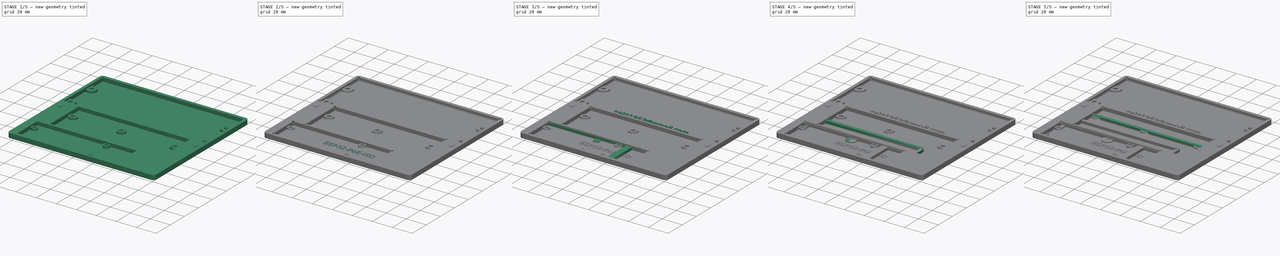
[diagram: build sequence overview — one tinted view per stage of 5, left to right]
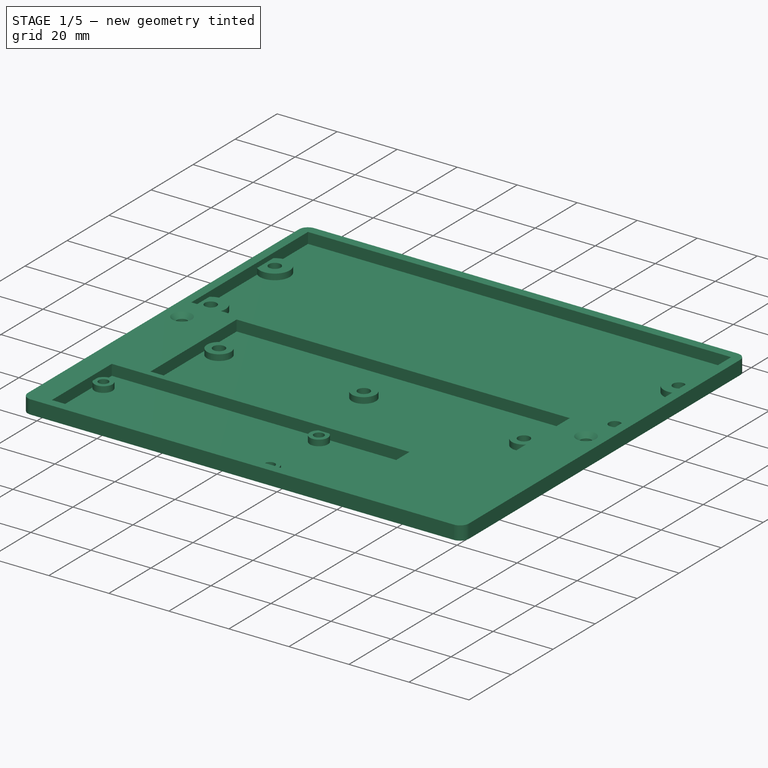
[diagram: stage 1 of 5 — iso view after this stage's code; geometry added in this stage tinted green]
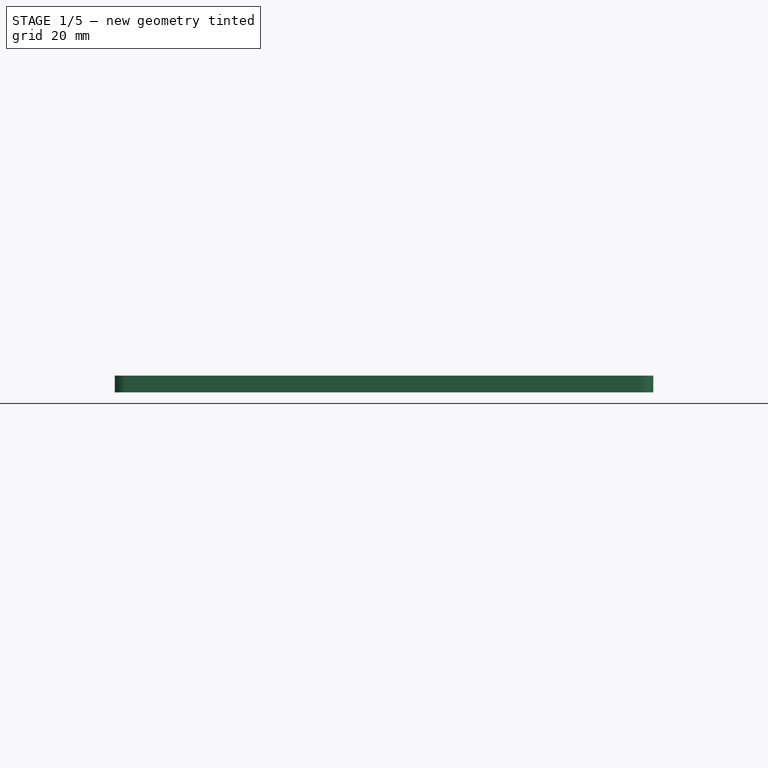
[diagram: stage 1 of 5 — front view after this stage's code; geometry added in this stage tinted green]
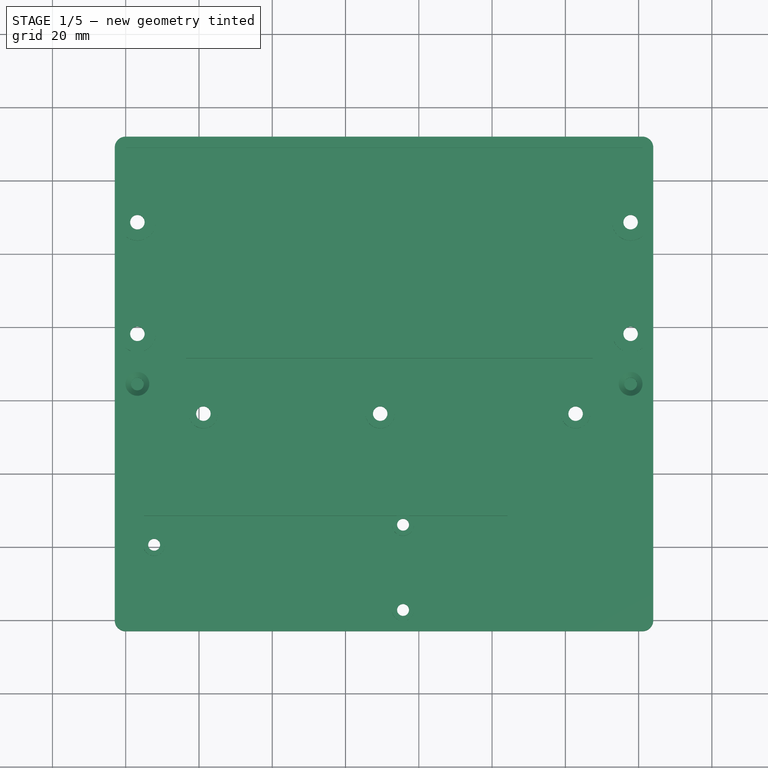
[diagram: stage 1 of 5 — top view after this stage's code; geometry added in this stage tinted green]
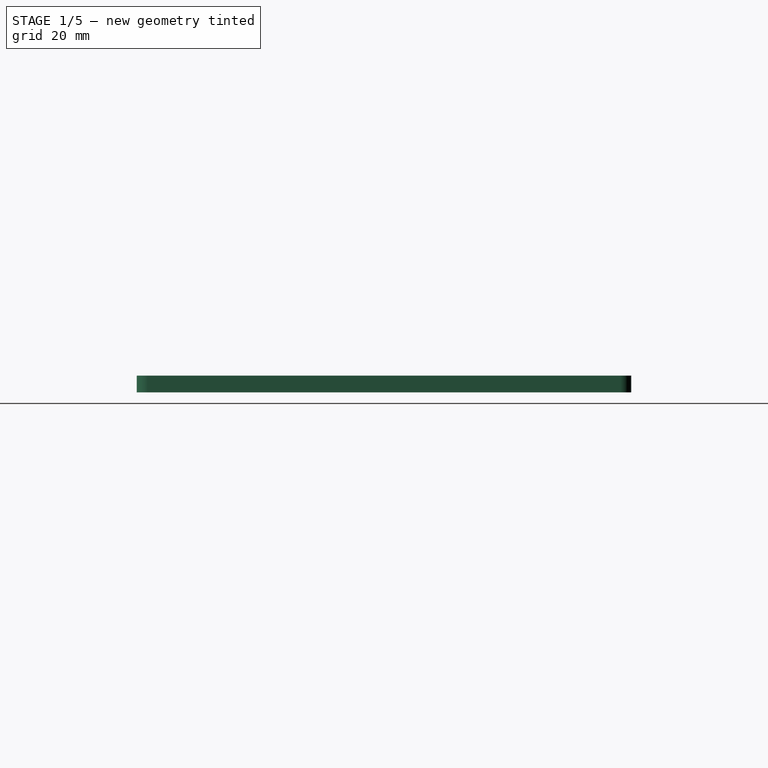
[diagram: stage 1 of 5 — right view after this stage's code; geometry added in this stage tinted green]
FCSTD DOCUMENT  (FreeCAD 1.0R39285 (Git))
Label: BoxTest
License: All rights reserved
LicenseURL: http://en.wikipedia.org/wiki/All_rights_reserved
objects: Sketcher::SketchObject×24, PartDesign::Pad×14, PartDesign::Pocket×6, PartDesign::Body×5, Part::Part2DObjectPython×2, PartDesign::Fillet×2, PartDesign::Chamfer×1
note: 124 computed .brp shape members not serialized (recipe doc carries the construction recipe); baked Part::Feature solids carry a one-line shape summary decoded from their .brp

FEATURE [PartDesign::Body] Body003  label="ESP32-PoE"
  AllowCompound = true
  Group = -> [Sketch012,Sketch013,Pad007,Sketch014,Pad008,Sketch016,Pocket003]
  Origin = -> Origin003
  Tip = -> Pocket003
FEATURE [Sketcher::SketchObject] Sketch017
  ArcFitTolerance = 1e-06
  AttachmentSupport = -> [XY_Plane004]
  FullyConstrained = true
  MakeInternals = false
  MapMode = 5
  sketch-geometry (31):
    g0: LineSegment StartX=5 StartY=0 StartZ=0 EndX=104.2 EndY=0 EndZ=0
    g1: LineSegment StartX=104.2 StartY=0 StartZ=0 EndX=104.2 EndY=28.5 EndZ=0
    g2: LineSegment StartX=104.2 StartY=28.5 StartZ=0 EndX=5 EndY=28.5 EndZ=0
    g3: LineSegment StartX=5 StartY=28.5 StartZ=0 EndX=5 EndY=0 EndZ=0
    g4: GeomPoint [constr] X=54.6 Y=14.25 Z=0
    g5: Circle CenterX=7.76 CenterY=20.61 CenterZ=0 NormalX=0 NormalY=0 NormalZ=1 AngleXU=0 Radius=1.6
    g6: Circle CenterX=75.7 CenterY=26.08 CenterZ=0 NormalX=0 NormalY=0 NormalZ=1 AngleXU=0 Radius=1.6
    g7: Circle CenterX=75.7 CenterY=2.82 CenterZ=0 NormalX=0 NormalY=0 NormalZ=1 AngleXU=0 Radius=1.6
    g8: LineSegment StartX=16.5 StartY=30.5 StartZ=0 EndX=127.5 EndY=30.5 EndZ=0
    g9: LineSegment StartX=127.5 StartY=30.5 StartZ=0 EndX=127.5 EndY=71.5 EndZ=0
    g10: LineSegment StartX=127.5 StartY=71.5 StartZ=0 EndX=16.5 EndY=71.5 EndZ=0
    g11: LineSegment StartX=16.5 StartY=71.5 StartZ=0 EndX=16.5 EndY=30.5 EndZ=0
    g12: GeomPoint [constr] X=72 Y=51 Z=0
    g13: Circle CenterX=21.2 CenterY=56.4 CenterZ=0 NormalX=0 NormalY=0 NormalZ=1 AngleXU=0 Radius=1.95
    g14: Circle CenterX=69.46 CenterY=56.4 CenterZ=0 NormalX=0 NormalY=0 NormalZ=1 AngleXU=0 Radius=1.95
    g15: Circle CenterX=122.8 CenterY=56.4 CenterZ=0 NormalX=0 NormalY=0 NormalZ=1 AngleXU=0 Radius=1.95
    g16: GeomPoint X=72 Y=56.4 Z=0
    g17: LineSegment StartX=0 StartY=129 StartZ=0 EndX=0 EndY=73.5 EndZ=0
    g18: LineSegment StartX=0 StartY=73.5 StartZ=0 EndX=141 EndY=73.5 EndZ=0
    g19: LineSegment StartX=141 StartY=73.5 StartZ=0 EndX=141 EndY=129 EndZ=0
    g20: LineSegment StartX=141 StartY=129 StartZ=0 EndX=0 EndY=129 EndZ=0
    g21: GeomPoint [constr] X=70.5 Y=101.25 Z=0
    g22: LineSegment [constr] StartX=3.19 StartY=78.19 StartZ=0 EndX=137.81 EndY=78.19 EndZ=0
    g23: LineSegment [constr] StartX=137.81 StartY=78.19 StartZ=0 EndX=137.81 EndY=108.67 EndZ=0
    g24: LineSegment [constr] StartX=137.81 StartY=108.67 StartZ=0 EndX=3.19 EndY=108.67 EndZ=0
    g25: LineSegment [constr] StartX=3.19 StartY=108.67 StartZ=0 EndX=3.19 EndY=78.19 EndZ=0
    g26: GeomPoint [constr] X=70.5 Y=93.43 Z=0
    g27: Circle CenterX=3.19 CenterY=108.67 CenterZ=0 NormalX=0 NormalY=0 NormalZ=1 AngleXU=0 Radius=1.95
    g28: Circle CenterX=3.19 CenterY=78.19 CenterZ=0 NormalX=0 NormalY=0 NormalZ=1 AngleXU=0 Radius=1.95
    g29: Circle CenterX=137.81 CenterY=108.67 CenterZ=0 NormalX=0 NormalY=0 NormalZ=1 AngleXU=0 Radius=1.95
    g30: Circle CenterX=137.81 CenterY=78.19 CenterZ=0 NormalX=0 NormalY=0 NormalZ=1 AngleXU=0 Radius=1.95
  constraints (84):
    c: Coincident(g0,g1)
    c: Coincident(g1,g2)
    c: Coincident(g2,g3)
    c: Coincident(g3,g0)
    c: Horizontal(g0)
    c: Horizontal(g2)
    c: Vertical(g1)
    c: Vertical(g3)
    c: Symmetric(g2,g0,g4)
    c: DistanceX(g2,g2) = 99.2
    c: PointOnObject(g0,g-1)
    c: DistanceX(g-1,g0) = 5
    c: DistanceY(g3,g3) = 28.5
    c: Equal(g7,g6)
    c: Equal(g6,g5)
    c: DistanceX(g2,g5) = 2.76
    c: DistanceY(g5,g2) = 7.89
    c: DistanceY(g6,g2) = 2.42
    c: DistanceY(g7,g2) = 25.68
    c: DistanceX(g0,g7) = 70.7
    c: Vertical(g7,g6)
    c: Coincident(g8,g9)
    c: Coincident(g9,g10)
    c: Coincident(g10,g11)
    c: Coincident(g11,g8)
    c: Horizontal(g8)
    c: Horizontal(g10)
    c: Vertical(g9)
    c: Vertical(g11)
    c: Symmetric(g10,g8,g12)
    c: DistanceX(g10,g10) = 111
    c: DistanceY(g9,g9) = 41
    c: DistanceY(g2,g8) = 2
    c: Horizontal(g13,g14)
    c: Horizontal(g14,g15)
    c: Equal(g13,g14)
    c: Equal(g14,g15)
    c: DistanceX(g13,g14) = 48.26
    c: DistanceX(g13,g15) = 101.6
    c: Symmetric(g13,g15,g16)
    c: Vertical(g16,g12)
    c: DistanceY(g12,g16) = 5.4
    c: Diameter(g13) = 3.9
    c: Diameter(g5) = 3.2
    c: Coincident(g17,g18)
    c: Coincident(g18,g19)
    c: Coincident(g19,g20)
    c: Coincident(g20,g17)
    c: Vertical(g17)
    c: Vertical(g19)
    c: Horizontal(g18)
    c: Horizontal(g20)
    c: Symmetric(g19,g17,g21)
    c: DistanceX(g20,g20) = 141
    c: DistanceY(g17,g17) = 55.5
    c: DistanceY(g10,g17) = 2
    c: PointOnObject(g17,g-2)
    c: DistanceX(g17,g10) = 16.5
    c: Coincident(g22,g23)
    c: Coincident(g23,g24)
    c: Coincident(g24,g25)
    c: Coincident(g25,g22)
    c: Horizontal(g22)
    c: Horizontal(g24)
    c: Vertical(g23)
    c: Vertical(g25)
    c: Symmetric(g24,g22,g26)
    c: Vertical(g26,g21)
    c: Distance(g26,g21) = 7.82
    c: DistanceX(g24,g24) = 134.62
    c: DistanceY(g25,g25) = 30.48
    c: Equal(g27,g28)
    c: Equal(g28,g29)
    c: Equal(g29,g30)
    c: Coincident(g27,g24)
    c: Coincident(g28,g22)
    c: Coincident(g29,g23)
    c: Coincident(g30,g22)
    c: Diameter(g27) = 3.9
    c: DistanceX(g5,g4) = 46.84
    c: DistanceY(g4,g5) = 6.36
    c: DistanceX(g4,g7) = 21.1
    c: DistanceY(g7,g4) = 11.43
    c: DistanceY(g4,g6) = 11.83
FEATURE [Sketcher::SketchObject] Sketch018
  ArcFitTolerance = 1e-06
  AttachmentSupport = -> [XY_Plane004]
  ExternalGeometry = -> [Sketch017]
  FullyConstrained = true
  MakeInternals = false
  MapMode = 5
  sketch-geometry (24):
    g0: LineSegment StartX=-6e-16 StartY=-3 StartZ=0 EndX=141 EndY=-3 EndZ=0
    g1: LineSegment StartX=144 StartY=-7e-16 StartZ=0 EndX=144 EndY=129 EndZ=0
    g2: LineSegment StartX=141 StartY=132 StartZ=0 EndX=0 EndY=132 EndZ=0
    g3: LineSegment StartX=-3 StartY=129 StartZ=0 EndX=-3 EndY=0 EndZ=0
    g4: ArcOfCircle CenterX=0 CenterY=0 CenterZ=0 NormalX=0 NormalY=0 NormalZ=1 AngleXU=0 Radius=3 StartAngle=3.14159 EndAngle=4.71239
    g5: ArcOfCircle CenterX=141 CenterY=1e-16 CenterZ=0 NormalX=0 NormalY=0 NormalZ=1 AngleXU=0 Radius=3 StartAngle=4.71239 EndAngle=6.28319
    g6: ArcOfCircle CenterX=141 CenterY=129 CenterZ=0 NormalX=0 NormalY=0 NormalZ=1 AngleXU=0 Radius=3 StartAngle=3.5e-15 EndAngle=1.5708
    g7: ArcOfCircle CenterX=0 CenterY=129 CenterZ=0 NormalX=0 NormalY=0 NormalZ=1 AngleXU=0 Radius=3 StartAngle=1.5708 EndAngle=3.14159
    g8: GeomPoint [constr] X=144 Y=132 Z=0
    g9: GeomPoint [constr] X=70.5 Y=64.5 Z=0
    g10: LineSegment StartX=0 StartY=73.5 StartZ=0 EndX=141 EndY=73.5 EndZ=0
    g11: LineSegment StartX=141 StartY=73.5 StartZ=0 EndX=141 EndY=129 EndZ=0
    g12: LineSegment StartX=141 StartY=129 StartZ=0 EndX=0 EndY=129 EndZ=0
    g13: LineSegment StartX=0 StartY=129 StartZ=0 EndX=0 EndY=73.5 EndZ=0
    g14: LineSegment StartX=16.5 StartY=71.5 StartZ=0 EndX=16.5 EndY=30.5 EndZ=0
    g15: LineSegment StartX=16.5 StartY=30.5 StartZ=0 EndX=127.5 EndY=30.5 EndZ=0
    g16: LineSegment StartX=127.5 StartY=30.5 StartZ=0 EndX=127.5 EndY=71.5 EndZ=0
    g17: LineSegment StartX=127.5 StartY=71.5 StartZ=0 EndX=16.5 EndY=71.5 EndZ=0
    g18: LineSegment StartX=104.2 StartY=0 StartZ=0 EndX=104.2 EndY=28.5 EndZ=0
    g19: LineSegment StartX=104.2 StartY=28.5 StartZ=0 EndX=5 EndY=28.5 EndZ=0
    g20: LineSegment StartX=5 StartY=28.5 StartZ=0 EndX=5 EndY=0 EndZ=0
    g21: LineSegment StartX=5 StartY=0 StartZ=0 EndX=104.2 EndY=0 EndZ=0
    g22: Circle CenterX=3.19 CenterY=64.5 CenterZ=0 NormalX=0 NormalY=0 NormalZ=1 AngleXU=0 Radius=1.75
    g23: Circle CenterX=137.81 CenterY=64.5 CenterZ=0 NormalX=0 NormalY=0 NormalZ=1 AngleXU=0 Radius=1.75
  constraints (56):
    c: Tangent(g0,g4) = -1.5708
    c: Tangent(g0,g5) = -1.5708
    c: Tangent(g1,g5) = -1.5708
    c: Tangent(g1,g6) = -1.5708
    c: Tangent(g2,g6) = -1.5708
    c: Tangent(g2,g7) = -1.5708
    c: Tangent(g3,g7) = -1.5708
    c: Tangent(g3,g4) = -1.5708
    c: Horizontal(g0)
    c: Horizontal(g2)
    c: Vertical(g1)
    c: Vertical(g3)
    c: Equal(g4,g5)
    c: Equal(g5,g6)
    c: Equal(g6,g7)
    c: Symmetric(g2,g0,g9)
    c: PointOnObject(g8,g1)
    c: PointOnObject(g8,g2)
    c: Radius(g5) = 3
    c: Coincident(g4,g-1)
    c: Coincident(g6,g-3)
    c: Coincident(g10,g11)
    c: Coincident(g11,g12)
    c: Coincident(g12,g13)
    c: Coincident(g13,g10)
    c: Horizontal(g10)
    c: Horizontal(g12)
    c: Vertical(g11)
    c: Vertical(g13)
    c: Coincident(g10,g-4)
    c: Coincident(g11,g6)
    c: Coincident(g14,g15)
    c: Coincident(g15,g16)
    c: Coincident(g16,g17)
    c: Coincident(g17,g14)
    c: Vertical(g14)
    c: Vertical(g16)
    c: Horizontal(g15)
    c: Horizontal(g17)
    c: Coincident(g14,g-5)
    c: Coincident(g15,g-6)
    c: Coincident(g18,g19)
    c: Coincident(g19,g20)
    c: Coincident(g20,g21)
    c: Coincident(g21,g18)
    c: Vertical(g18)
    c: Vertical(g20)
    c: Horizontal(g19)
    c: Horizontal(g21)
    c: Coincident(g18,g-8)
    c: Coincident(g19,g-7)
    c: Equal(g23,g22)
    c: Symmetric(g22,g23,g9)
    c: Horizontal(g22,g23)
    c: Diameter(g22) = 3.5
    c: Vertical(g23,g-9)
FEATURE [PartDesign::Pad] Pad009
  Direction = (0,0,1)
  Length = 4.6
  Length2 = 10
  Profile = -> Sketch018
  ReferenceAxis = -> Sketch018 [N_Axis]
  Refine = true
  Suppressed = false
  Type = 0
  expr: Length = 1.6 + 2 + 1
FEATURE [Sketcher::SketchObject] Sketch019
  ArcFitTolerance = 1e-06
  AttachmentOffset = pos=(0,0,3) rot=(0,0,1;0rad)
  AttachmentSupport = -> [XY_Plane004]
  ExternalGeometry = -> [Sketch017]
  FullyConstrained = true
  MakeInternals = false
  MapMode = 5
  Placement = pos=(0,0,3) rot=(0,0,1;0rad)
  expr: .AttachmentOffset.Base.z = 2 + 1
  sketch-geometry (12):
    g0: Circle CenterX=0 CenterY=129 CenterZ=0 NormalX=0 NormalY=0 NormalZ=1 AngleXU=0 Radius=1
    g1: Circle CenterX=141 CenterY=129 CenterZ=0 NormalX=0 NormalY=0 NormalZ=1 AngleXU=0 Radius=1
    g2: Circle CenterX=0 CenterY=73.5 CenterZ=0 NormalX=0 NormalY=0 NormalZ=1 AngleXU=0 Radius=1
    g3: Circle CenterX=141 CenterY=73.5 CenterZ=0 NormalX=0 NormalY=0 NormalZ=1 AngleXU=0 Radius=1
    g4: Circle CenterX=16.5 CenterY=71.5 CenterZ=0 NormalX=0 NormalY=0 NormalZ=1 AngleXU=0 Radius=1
    g5: Circle CenterX=127.5 CenterY=71.5 CenterZ=0 NormalX=0 NormalY=0 NormalZ=1 AngleXU=0 Radius=1
    g6: Circle CenterX=16.5 CenterY=30.5 CenterZ=0 NormalX=0 NormalY=0 NormalZ=1 AngleXU=0 Radius=1
    g7: Circle CenterX=127.5 CenterY=30.5 CenterZ=0 NormalX=0 NormalY=0 NormalZ=1 AngleXU=0 Radius=1
    g8: Circle CenterX=5 CenterY=28.5 CenterZ=0 NormalX=0 NormalY=0 NormalZ=1 AngleXU=0 Radius=1
    g9: Circle CenterX=104.2 CenterY=28.5 CenterZ=0 NormalX=0 NormalY=0 NormalZ=1 AngleXU=0 Radius=1
    g10: Circle CenterX=5 CenterY=0 CenterZ=0 NormalX=0 NormalY=0 NormalZ=1 AngleXU=0 Radius=1
    g11: Circle CenterX=104.2 CenterY=0 CenterZ=0 NormalX=0 NormalY=0 NormalZ=1 AngleXU=0 Radius=1
  constraints (24):
    c: Equal(g11,g9)
    c: Equal(g9,g7)
    c: Equal(g7,g5)
    c: Equal(g5,g3)
    c: Equal(g3,g1)
    c: Equal(g1,g0)
    c: Equal(g0,g2)
    c: Equal(g2,g4)
    c: Equal(g4,g6)
    c: Equal(g6,g8)
    c: Equal(g8,g10)
    c: Coincident(g0,g-3)
    c: Coincident(g1,g-3)
    c: Coincident(g2,g-5)
    c: Coincident(g3,g-5)
    c: Coincident(g4,g-4)
    c: Coincident(g5,g-4)
    c: Coincident(g6,g-6)
    c: Coincident(g7,g-6)
    c: Coincident(g8,g-7)
    c: Coincident(g9,g-7)
    c: Coincident(g10,g-8)
    c: Coincident(g11,g-8)
    c: Diameter(g11) = 2
FEATURE [Sketcher::SketchObject] Sketch020
  ArcFitTolerance = 1e-06
  AttachmentSupport = -> [XY_Plane004]
  ExternalGeometry = -> [Sketch017]
  FullyConstrained = true
  MakeInternals = false
  MapMode = 5
  sketch-geometry (20):
    g0: Circle CenterX=3.19 CenterY=108.67 CenterZ=0 NormalX=0 NormalY=0 NormalZ=1 AngleXU=0 Radius=5
    g1: Circle CenterX=3.19 CenterY=78.19 CenterZ=0 NormalX=0 NormalY=0 NormalZ=1 AngleXU=0 Radius=5
    g2: Circle CenterX=137.81 CenterY=108.67 CenterZ=0 NormalX=0 NormalY=0 NormalZ=1 AngleXU=0 Radius=5
    g3: Circle CenterX=137.81 CenterY=78.19 CenterZ=0 NormalX=0 NormalY=0 NormalZ=1 AngleXU=0 Radius=5
    g4: Circle CenterX=21.2 CenterY=56.4 CenterZ=0 NormalX=0 NormalY=0 NormalZ=1 AngleXU=0 Radius=4
    g5: Circle CenterX=69.46 CenterY=56.4 CenterZ=0 NormalX=0 NormalY=0 NormalZ=1 AngleXU=0 Radius=4
    g6: Circle CenterX=122.8 CenterY=56.4 CenterZ=0 NormalX=0 NormalY=0 NormalZ=1 AngleXU=0 Radius=4
    g7: Circle CenterX=7.76 CenterY=20.61 CenterZ=0 NormalX=0 NormalY=0 NormalZ=1 AngleXU=0 Radius=3
    g8: Circle CenterX=75.7 CenterY=26.08 CenterZ=0 NormalX=0 NormalY=0 NormalZ=1 AngleXU=0 Radius=3
    g9: Circle CenterX=75.7 CenterY=2.82 CenterZ=0 NormalX=0 NormalY=0 NormalZ=1 AngleXU=0 Radius=3
    g10: Circle CenterX=3.19 CenterY=108.67 CenterZ=0 NormalX=0 NormalY=0 NormalZ=1 AngleXU=0 Radius=1.6
    g11: Circle CenterX=137.81 CenterY=108.67 CenterZ=0 NormalX=0 NormalY=0 NormalZ=1 AngleXU=0 Radius=1.6
    g12: Circle CenterX=3.19 CenterY=78.19 CenterZ=0 NormalX=0 NormalY=0 NormalZ=1 AngleXU=0 Radius=1.6
    g13: Circle CenterX=137.81 CenterY=78.19 CenterZ=0 NormalX=0 NormalY=0 NormalZ=1 AngleXU=0 Radius=1.6
    g14: Circle CenterX=21.2 CenterY=56.4 CenterZ=0 NormalX=0 NormalY=0 NormalZ=1 AngleXU=0 Radius=1.6
    g15: Circle CenterX=69.46 CenterY=56.4 CenterZ=0 NormalX=0 NormalY=0 NormalZ=1 AngleXU=0 Radius=1.6
    g16: Circle CenterX=122.8 CenterY=56.4 CenterZ=0 NormalX=0 NormalY=0 NormalZ=1 AngleXU=0 Radius=1.6
    g17: Circle CenterX=7.76 CenterY=20.61 CenterZ=0 NormalX=0 NormalY=0 NormalZ=1 AngleXU=0 Radius=1.1
    g18: Circle CenterX=75.7 CenterY=26.08 CenterZ=0 NormalX=0 NormalY=0 NormalZ=1 AngleXU=0 Radius=1.1
    g19: Circle CenterX=75.7 CenterY=2.82 CenterZ=0 NormalX=0 NormalY=0 NormalZ=1 AngleXU=0 Radius=1.1
  constraints (40):
    c: Equal(g3,g2)
    c: Equal(g2,g1)
    c: Equal(g1,g0)
    c: Diameter(g1) = 10
    c: Coincident(g0,g-3)
    c: Coincident(g1,g-4)
    c: Coincident(g3,g-6)
    c: Coincident(g2,g-5)
    c: Equal(g4,g5)
    c: Equal(g5,g6)
    c: Coincident(g4,g-7)
    c: Coincident(g5,g-8)
    c: Coincident(g6,g-9)
    c: Diameter(g5) = 8
    c: Equal(g9,g8)
    c: Equal(g8,g7)
    c: Coincident(g7,g-10)
    c: Coincident(g8,g-11)
    c: Coincident(g9,g-12)
    c: Diameter(g7) = 6
    c: Equal(g13,g12)
    c: Equal(g12,g11)
    c: Equal(g11,g10)
    c: Diameter(g10) = 3.2
    c: Coincident(g10,g0)
    c: Coincident(g11,g2)
    c: Coincident(g12,g1)
    c: Coincident(g13,g3)
    c: Equal(g16,g15)
    c: Equal(g15,g14)
    c: Diameter(g14) = 3.2
    c: Coincident(g14,g4)
    c: Coincident(g15,g5)
    c: Coincident(g16,g6)
    c: Equal(g19,g18)
    c: Equal(g18,g17)
    c: Diameter(g17) = 2.2
    c: Coincident(g17,g7)
    c: Coincident(g18,g8)
    c: Coincident(g19,g9)
FEATURE [Sketcher::SketchObject] Sketch021
  ArcFitTolerance = 1e-06
  AttachmentSupport = -> [XY_Plane004]
  ExternalGeometry = -> [Sketch017]
  FullyConstrained = true
  MakeInternals = false
  MapMode = 5
  sketch-geometry (8):
    g0: LineSegment StartX=16.5 StartY=60.4 StartZ=0 EndX=16.5 EndY=52.4 EndZ=0
    g1: LineSegment StartX=16.5 StartY=52.4 StartZ=0 EndX=127.5 EndY=52.4 EndZ=0
    g2: LineSegment StartX=127.5 StartY=52.4 StartZ=0 EndX=127.5 EndY=60.4 EndZ=0
    g3: LineSegment StartX=127.5 StartY=60.4 StartZ=0 EndX=16.5 EndY=60.4 EndZ=0
    g4: GeomPoint [constr] X=72 Y=56.4 Z=0
    g5: Circle CenterX=21.2 CenterY=56.4 CenterZ=0 NormalX=0 NormalY=0 NormalZ=1 AngleXU=0 Radius=1.6
    g6: Circle CenterX=69.46 CenterY=56.4 CenterZ=0 NormalX=0 NormalY=0 NormalZ=1 AngleXU=0 Radius=1.6
    g7: Circle CenterX=122.8 CenterY=56.4 CenterZ=0 NormalX=0 NormalY=0 NormalZ=1 AngleXU=0 Radius=1.6
  constraints (19):
    c: Coincident(g0,g1)
    c: Coincident(g1,g2)
    c: Coincident(g2,g3)
    c: Coincident(g3,g0)
    c: Vertical(g0)
    c: Vertical(g2)
    c: Horizontal(g1)
    c: Horizontal(g3)
    c: Symmetric(g2,g0,g4)
    c: PointOnObject(g0,g-4)
    c: PointOnObject(g2,g-3)
    c: Horizontal(g4,g-5)
    c: Distance(g0,g0) = 8
    c: Equal(g7,g6)
    c: Equal(g6,g5)
    c: Diameter(g6) = 3.2
    c: Coincident(g7,g-7)
    c: Coincident(g6,g-5)
    c: Coincident(g5,g-6)
FEATURE [PartDesign::Pad] Pad010
  BaseFeature = -> Pad009
  Direction = (0,0,1)
  Length = 3
  Length2 = 10
  Profile = -> Sketch020
  ReferenceAxis = -> Sketch020 [N_Axis]
  Refine = true
  Suppressed = false
  Type = 0
FEATURE [Sketcher::SketchObject] Sketch022
  ArcFitTolerance = 1e-06
  AttachmentSupport = -> [XY_Plane004]
  ExternalGeometry = -> [Sketch018]
  FullyConstrained = true
  MakeInternals = false
  MapMode = 5
  sketch-geometry (10):
    g0: LineSegment StartX=-6e-16 StartY=-3 StartZ=0 EndX=141 EndY=-3 EndZ=0
    g1: LineSegment StartX=144 StartY=-8e-16 StartZ=0 EndX=144 EndY=129 EndZ=0
    g2: LineSegment StartX=141 StartY=132 StartZ=0 EndX=0 EndY=132 EndZ=0
    g3: LineSegment StartX=-3 StartY=129 StartZ=0 EndX=-3 EndY=0 EndZ=0
    g4: ArcOfCircle CenterX=0 CenterY=0 CenterZ=0 NormalX=0 NormalY=0 NormalZ=1 AngleXU=0 Radius=3 StartAngle=3.14159 EndAngle=4.71239
    g5: ArcOfCircle CenterX=141 CenterY=-1e-16 CenterZ=0 NormalX=0 NormalY=0 NormalZ=1 AngleXU=0 Radius=3 StartAngle=4.71239 EndAngle=6.28319
    g6: ArcOfCircle CenterX=141 CenterY=129 CenterZ=0 NormalX=0 NormalY=0 NormalZ=1 AngleXU=0 Radius=3 StartAngle=-5.42e-14 EndAngle=1.5708
    g7: ArcOfCircle CenterX=1e-16 CenterY=129 CenterZ=0 NormalX=0 NormalY=0 NormalZ=1 AngleXU=0 Radius=3 StartAngle=1.5708 EndAngle=3.14159
    g8: GeomPoint [constr] X=144 Y=132 Z=0
    g9: GeomPoint [constr] X=70.5 Y=64.5 Z=0
  constraints (21):
    c: Tangent(g0,g4) = -1.5708
    c: Tangent(g0,g5) = -1.5708
    c: Tangent(g1,g5) = -1.5708
    c: Tangent(g1,g6) = -1.5708
    c: Tangent(g2,g6) = -1.5708
    c: Tangent(g2,g7) = -1.5708
    c: Tangent(g3,g7) = -1.5708
    c: Tangent(g3,g4) = -1.5708
    c: Horizontal(g0)
    c: Horizontal(g2)
    c: Vertical(g1)
    c: Vertical(g3)
    c: Equal(g4,g5)
    c: Equal(g5,g6)
    c: Equal(g6,g7)
    c: Symmetric(g2,g0,g9)
    c: PointOnObject(g8,g1)
    c: PointOnObject(g8,g2)
    c: Radius(g5) = 3
    c: Coincident(g6,g-3)
    c: Coincident(g4,g-1)
FEATURE [PartDesign::Pad] Pad012
  BaseFeature = -> Pad010
  Direction = (0,0,1)
  Length = 1
  Length2 = 10
  Profile = -> Sketch022
  ReferenceAxis = -> Sketch022 [N_Axis]
  Refine = true
  Suppressed = false
  Type = 0
FEATURE [Sketcher::SketchObject] Sketch023
  ArcFitTolerance = 1e-06
  AttachmentSupport = -> [XY_Plane004]
  ExternalGeometry = -> [Sketch017]
  FullyConstrained = true
  MakeInternals = false
  MapMode = 5
  sketch-geometry (10):
    g0: Circle CenterX=3.19 CenterY=108.67 CenterZ=0 NormalX=0 NormalY=0 NormalZ=1 AngleXU=0 Radius=1.975
    g1: Circle CenterX=3.19 CenterY=78.19 CenterZ=0 NormalX=0 NormalY=0 NormalZ=1 AngleXU=0 Radius=1.975
    g2: Circle CenterX=137.81 CenterY=108.67 CenterZ=0 NormalX=0 NormalY=0 NormalZ=1 AngleXU=0 Radius=1.975
    g3: Circle CenterX=137.81 CenterY=78.19 CenterZ=0 NormalX=0 NormalY=0 NormalZ=1 AngleXU=0 Radius=1.975
    g4: Circle CenterX=21.2 CenterY=56.4 CenterZ=0 NormalX=0 NormalY=0 NormalZ=1 AngleXU=0 Radius=1.975
    g5: Circle CenterX=69.46 CenterY=56.4 CenterZ=0 NormalX=0 NormalY=0 NormalZ=1 AngleXU=0 Radius=1.975
    g6: Circle CenterX=122.8 CenterY=56.4 CenterZ=0 NormalX=0 NormalY=0 NormalZ=1 AngleXU=0 Radius=1.975
    g7: Circle CenterX=7.76 CenterY=20.61 CenterZ=0 NormalX=0 NormalY=0 NormalZ=1 AngleXU=0 Radius=1.625
    g8: Circle CenterX=75.7 CenterY=26.08 CenterZ=0 NormalX=0 NormalY=0 NormalZ=1 AngleXU=0 Radius=1.625
    g9: Circle CenterX=75.7 CenterY=2.82 CenterZ=0 NormalX=0 NormalY=0 NormalZ=1 AngleXU=0 Radius=1.625
  constraints (20):
    c: Equal(g3,g2)
    c: Equal(g2,g1)
    c: Equal(g1,g0)
    c: Coincident(g0,g-3)
    c: Coincident(g1,g-4)
    c: Coincident(g2,g-5)
    c: Coincident(g3,g-6)
    c: Diameter(g0) = 3.95
    c: Equal(g4,g5)
    c: Equal(g5,g6)
    c: Coincident(g4,g-7)
    c: Coincident(g5,g-8)
    c: Coincident(g6,g-9)
    c: Diameter(g5) = 3.95
    c: Equal(g9,g8)
    c: Equal(g8,g7)
    c: Coincident(g7,g-10)
    c: Coincident(g8,g-11)
    c: Coincident(g9,g-12)
    c: Diameter(g7) = 3.25
FEATURE [PartDesign::Pocket] Pocket005
  BaseFeature = -> Pad012
  Direction = (0,0,-1)
  Length = 5
  Length2 = 5
  Profile = -> Sketch023
  ReferenceAxis = -> Sketch023 [N_Axis]
  Refine = true
  Reversed = true
  Suppressed = false
  Type = 1
FEATURE [PartDesign::Chamfer] Chamfer
  Angle = 45
  Base = -> Pocket005 [Edge22,Edge21]
  BaseFeature = -> Pocket005
  ChamferType = 0
  FlipDirection = false
  Refine = true
  Size = 1.5
  Size2 = 1
  SupportTransform = false
  Suppressed = false
  UseAllEdges = false
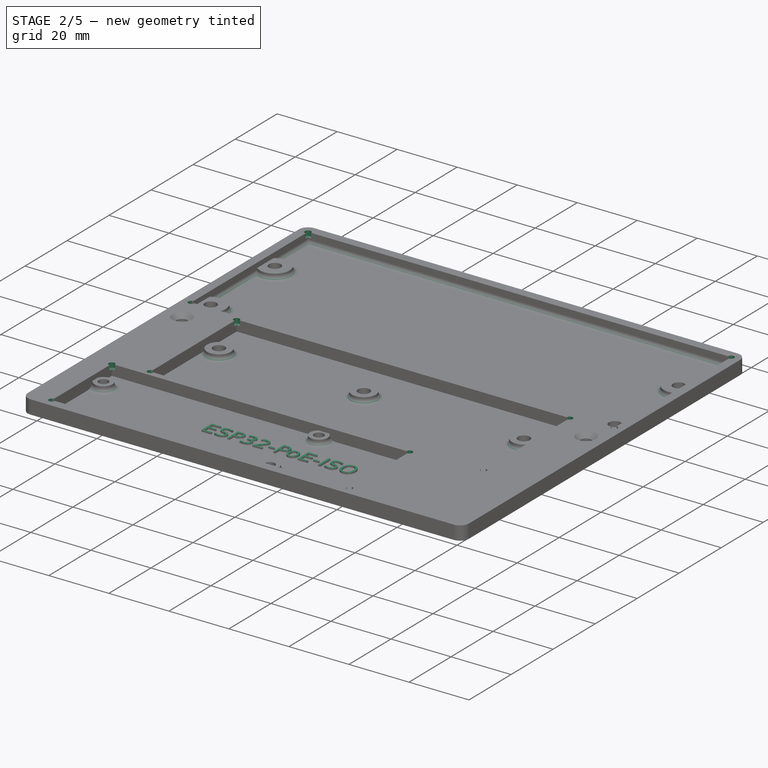
[diagram: stage 2 of 5 — iso view after this stage's code; geometry added in this stage tinted green]
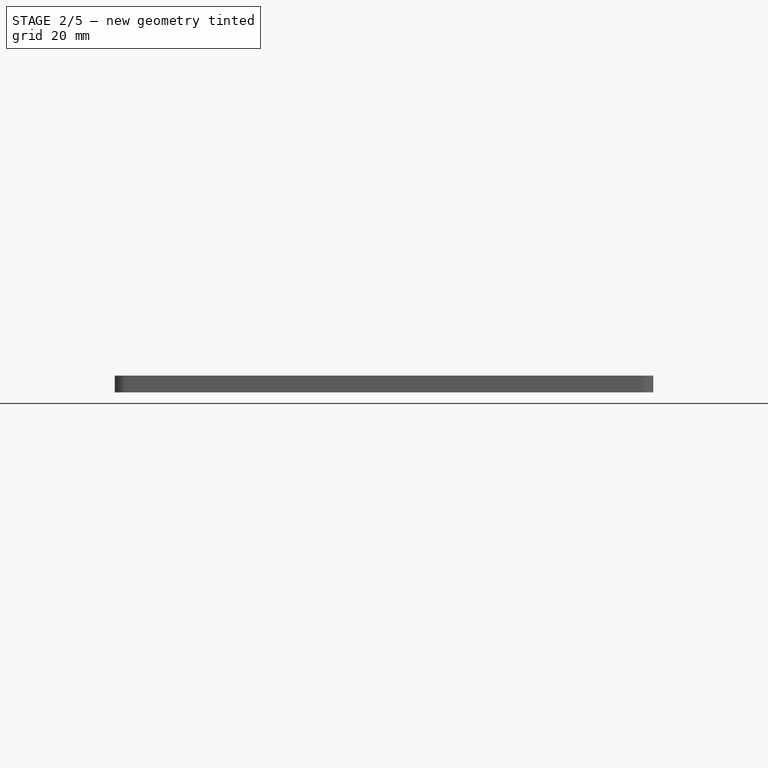
[diagram: stage 2 of 5 — front view after this stage's code; geometry added in this stage tinted green]
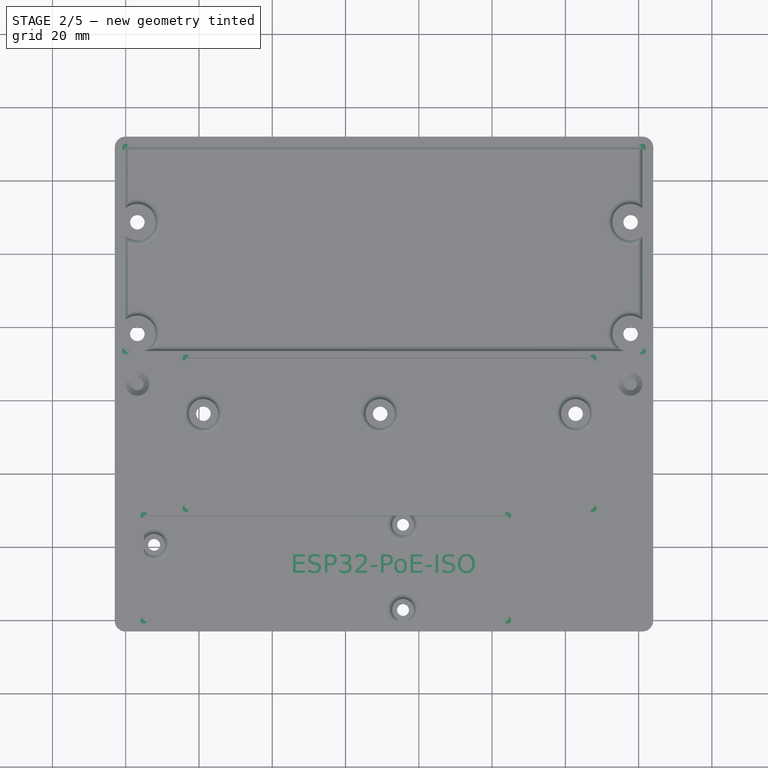
[diagram: stage 2 of 5 — top view after this stage's code; geometry added in this stage tinted green]
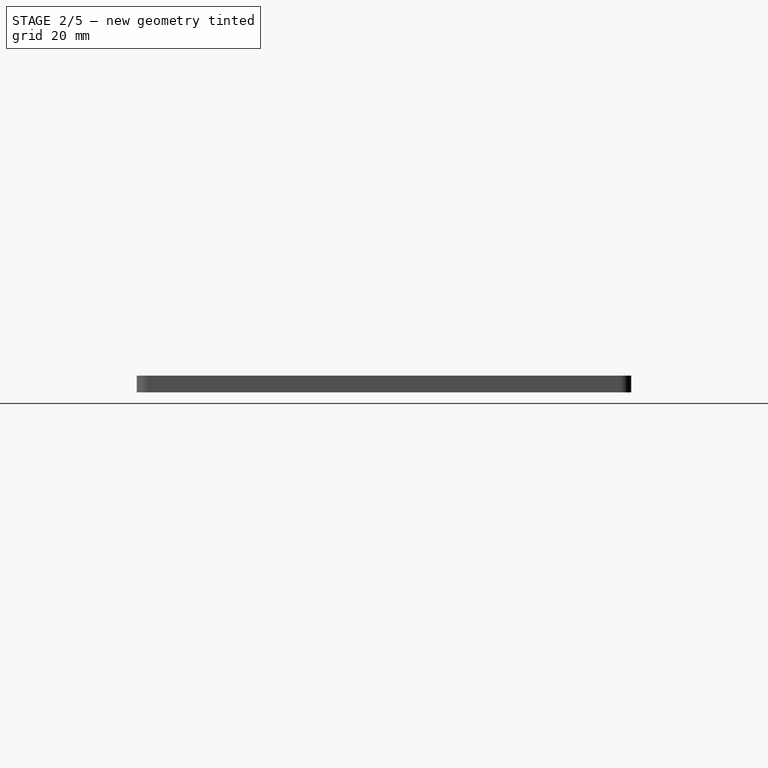
[diagram: stage 2 of 5 — right view after this stage's code; geometry added in this stage tinted green]
FEATURE [Part::Part2DObjectPython] ShapeString  # Draft 2D object (typed FeaturePython)
  FontFile = <path>
  Fuse = false
  Justification = 7
  JustificationReference = 0
  KeepLeftMargin = false
  MakeFace = true
  ObliqueAngle = 0
  Placement = pos=(70.5,13,1) rot=(0,0,1;0rad)
  ScaleToSize = true
  Size = 5
  String = ESP32-PoE-ISO
  Tracking = 0
FEATURE [PartDesign::Pad] Pad013
  BaseFeature = -> Chamfer
  Direction = (0,0,1)
  Length = 0.5
  Length2 = 10
  Profile = -> ShapeString
  ReferenceAxis = -> ShapeString [N_Axis]
  Refine = true
  Suppressed = false
  Type = 0
FEATURE [PartDesign::Fillet] Fillet
  Base = -> Pad013 [Face30]
  BaseFeature = -> Pad013
  Radius = 1.5
  Refine = true
  SupportTransform = false
  Suppressed = false
  UseAllEdges = false
FEATURE [PartDesign::Fillet] Fillet001
  Base = -> Fillet [Edge156,Edge157,Edge158,Edge161,Edge160,Edge159]
  BaseFeature = -> Fillet
  Radius = 1.5
  Refine = true
  SupportTransform = false
  Suppressed = false
  UseAllEdges = false
FEATURE [PartDesign::Pocket] Pocket006
  BaseFeature = -> Fillet001
  Direction = (0,0,-1)
  Length = 5
  Length2 = 5
  Profile = -> Sketch019
  ReferenceAxis = -> Sketch019 [N_Axis]
  Refine = true
  Reversed = true
  Suppressed = false
  Type = 0
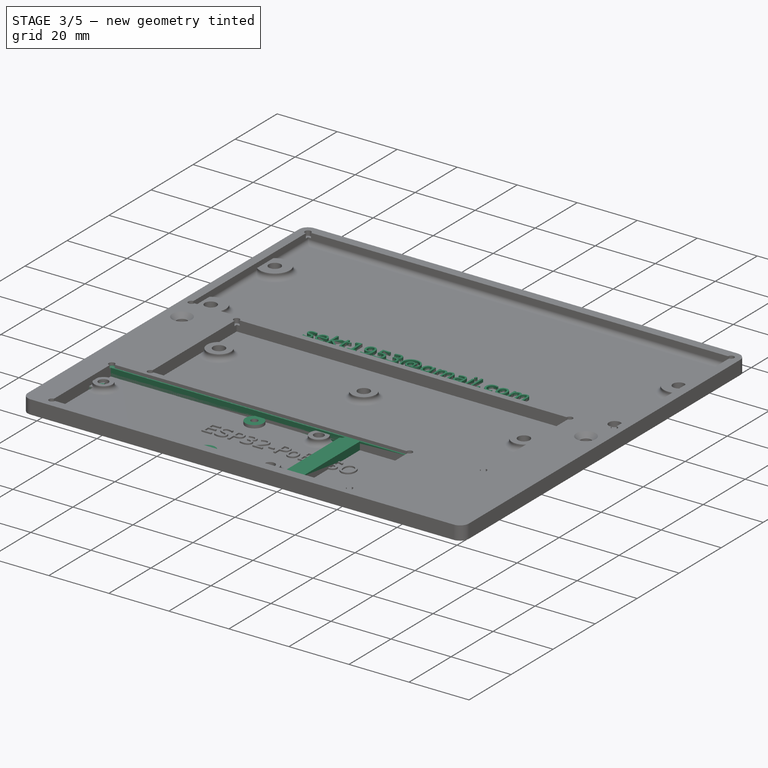
[diagram: stage 3 of 5 — iso view after this stage's code; geometry added in this stage tinted green]
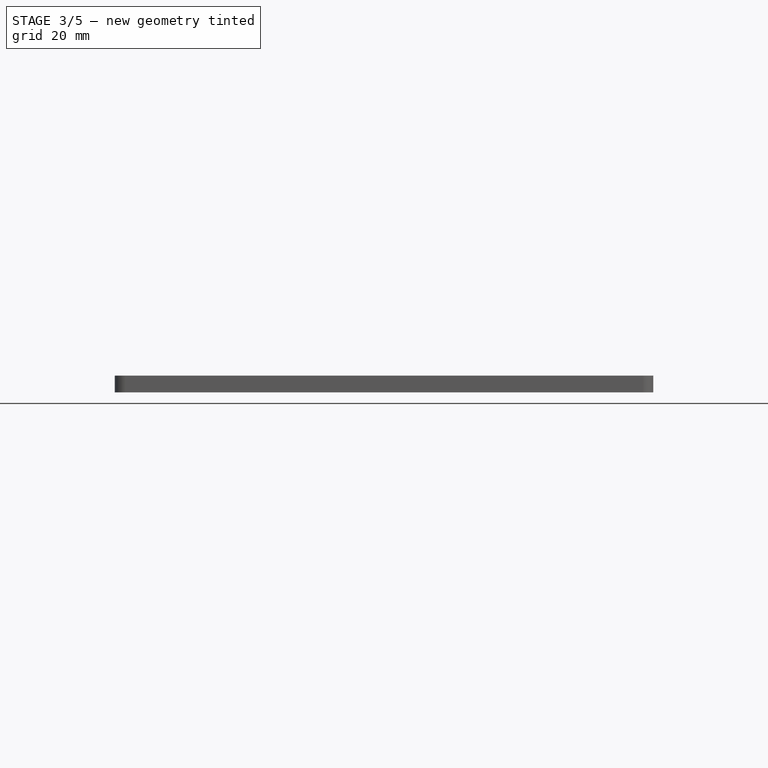
[diagram: stage 3 of 5 — front view after this stage's code; geometry added in this stage tinted green]
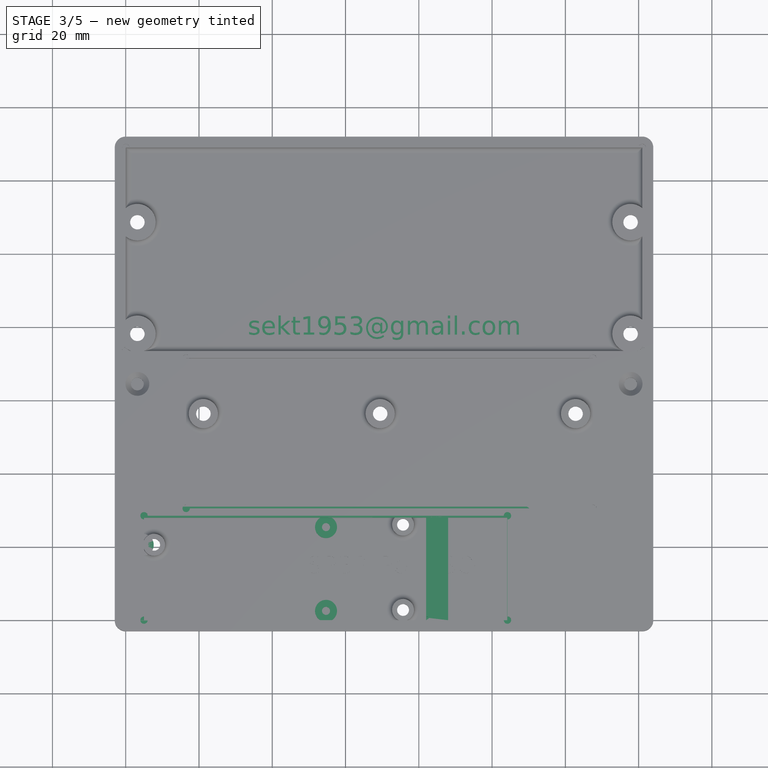
[diagram: stage 3 of 5 — top view after this stage's code; geometry added in this stage tinted green]
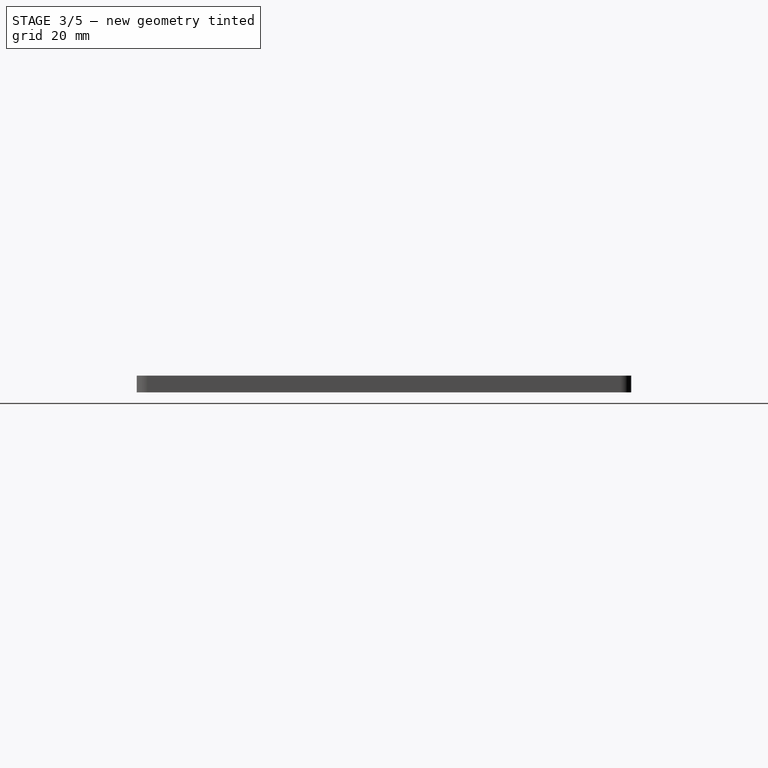
[diagram: stage 3 of 5 — right view after this stage's code; geometry added in this stage tinted green]
FEATURE [PartDesign::Body] Body001  label="MCP23017_300"
  AllowCompound = true
  Group = -> [Sketch004,Sketch005,Pad002,Sketch006,Pad003,Sketch007,Pocket001,Sketch008,Pad004]
  Origin = -> Origin001
  Tip = -> Pad004
FEATURE [Sketcher::SketchObject] Sketch009
  ArcFitTolerance = 1e-06
  AttachmentSupport = -> [XY_Plane002]
  FullyConstrained = true
  MakeInternals = false
  MapMode = 5
  expr: Constraints[21] = 8 - 3
  sketch-geometry (8):
    g0: LineSegment StartX=5 StartY=28 StartZ=0 EndX=5 EndY=0 EndZ=0
    g1: LineSegment StartX=5 StartY=0 StartZ=0 EndX=104.15 EndY=0 EndZ=0
    g2: LineSegment StartX=104.15 StartY=0 StartZ=0 EndX=104.15 EndY=28 EndZ=0
    g3: LineSegment StartX=104.15 StartY=28 StartZ=0 EndX=5 EndY=28 EndZ=0
    g4: GeomPoint [constr] X=54.575 Y=14 Z=0
    g5: Circle CenterX=7.73 CenterY=20.36 CenterZ=0 NormalX=0 NormalY=0 NormalZ=1 AngleXU=0 Radius=1.1
    g6: Circle CenterX=75.675 CenterY=25.83 CenterZ=0 NormalX=0 NormalY=0 NormalZ=1 AngleXU=0 Radius=1.1
    g7: Circle CenterX=75.675 CenterY=2.5746 CenterZ=0 NormalX=0 NormalY=0 NormalZ=1 AngleXU=0 Radius=1.1
  constraints (22):
    c: Coincident(g0,g1)
    c: Coincident(g1,g2)
    c: Coincident(g2,g3)
    c: Coincident(g3,g0)
    c: Vertical(g0)
    c: Vertical(g2)
    c: Horizontal(g1)
    c: Horizontal(g3)
    c: Symmetric(g2,g0,g4)
    c: DistanceX(g3,g3) = 99.15
    c: DistanceY(g2,g2) = 28
    c: Vertical(g7,g6)
    c: Equal(g5,g6)
    c: Equal(g6,g7)
    c: DistanceY(g5,g0) = 7.64
    c: DistanceX(g0,g5) = 2.73
    c: DistanceY(g6,g0) = 2.17
    c: DistanceY(g7,g0) = 25.4254
    c: DistanceX(g0,g7) = 70.675
    c: Diameter(g5) = 2.2
    c: PointOnObject(g0,g-1)
    c: DistanceX(g-1,g0) = 5
FEATURE [Sketcher::SketchObject] Sketch010
  ArcFitTolerance = 1e-06
  AttachmentSupport = -> [XY_Plane002]
  ExternalGeometry = -> [Sketch009]
  FullyConstrained = true
  MakeInternals = false
  MapMode = 5
  sketch-geometry (14):
    g0: LineSegment StartX=0 StartY=-3 StartZ=0 EndX=109.15 EndY=-3 EndZ=0
    g1: LineSegment StartX=112.15 StartY=-1e-16 StartZ=0 EndX=112.15 EndY=28 EndZ=0
    g2: LineSegment StartX=109.15 StartY=31 StartZ=0 EndX=0 EndY=31 EndZ=0
    g3: LineSegment StartX=-3 StartY=28 StartZ=0 EndX=-3 EndY=0 EndZ=0
    g4: ArcOfCircle CenterX=0 CenterY=0 CenterZ=0 NormalX=0 NormalY=0 NormalZ=1 AngleXU=0 Radius=3 StartAngle=3.14159 EndAngle=4.71239
    g5: ArcOfCircle CenterX=109.15 CenterY=-1e-16 CenterZ=0 NormalX=0 NormalY=0 NormalZ=1 AngleXU=0 Radius=3 StartAngle=4.71239 EndAngle=6.28319
    g6: ArcOfCircle CenterX=109.15 CenterY=28 CenterZ=0 NormalX=0 NormalY=0 NormalZ=1 AngleXU=0 Radius=3 StartAngle=5e-16 EndAngle=1.5708
    g7: ArcOfCircle CenterX=-2e-16 CenterY=28 CenterZ=0 NormalX=0 NormalY=0 NormalZ=1 AngleXU=0 Radius=3 StartAngle=1.5708 EndAngle=3.14159
    g8: GeomPoint [constr] X=112.15 Y=31 Z=0
    g9: GeomPoint [constr] X=54.575 Y=14 Z=0
    g10: LineSegment StartX=104.15 StartY=28 StartZ=0 EndX=5 EndY=28 EndZ=0
    g11: LineSegment StartX=5 StartY=28 StartZ=0 EndX=5 EndY=0 EndZ=0
    g12: LineSegment StartX=5 StartY=0 StartZ=0 EndX=104.15 EndY=0 EndZ=0
    g13: LineSegment StartX=104.15 StartY=0 StartZ=0 EndX=104.15 EndY=28 EndZ=0
  constraints (32):
    c: Tangent(g0,g4) = -1.5708
    c: Tangent(g0,g5) = -1.5708
    c: Tangent(g1,g5) = -1.5708
    c: Tangent(g1,g6) = -1.5708
    c: Tangent(g2,g6) = -1.5708
    c: Tangent(g2,g7) = -1.5708
    c: Tangent(g3,g7) = -1.5708
    c: Tangent(g3,g4) = -1.5708
    c: Horizontal(g0)
    c: Horizontal(g2)
    c: Vertical(g1)
    c: Vertical(g3)
    c: Equal(g4,g5)
    c: Equal(g5,g6)
    c: Equal(g6,g7)
    c: Symmetric(g2,g0,g9)
    c: PointOnObject(g8,g1)
    c: PointOnObject(g8,g2)
    c: Radius(g5) = 3
    c: Coincident(g4,g-1)
    c: Horizontal(g6,g-3)
    c: DistanceX(g-3,g6) = 5
    c: Coincident(g10,g11)
    c: Coincident(g11,g12)
    c: Coincident(g12,g13)
    c: Coincident(g13,g10)
    c: Horizontal(g10)
    c: Horizontal(g12)
    c: Vertical(g11)
    c: Vertical(g13)
    c: Coincident(g10,g-3)
    c: Coincident(g11,g-4)
FEATURE [PartDesign::Pad] Pad005
  Direction = (0,0,1)
  Length = 3.6
  Length2 = 10
  Profile = -> Sketch010
  ReferenceAxis = -> Sketch010 [N_Axis]
  Refine = true
  Suppressed = false
  Type = 0
  expr: Length = 1.6 + 2
FEATURE [Sketcher::SketchObject] Sketch012
  ArcFitTolerance = 1e-06
  AttachmentSupport = -> [XY_Plane003]
  FullyConstrained = true
  MakeInternals = false
  MapMode = 5
  sketch-geometry (8):
    g0: LineSegment StartX=2 StartY=0 StartZ=0 EndX=82 EndY=0 EndZ=0
    g1: LineSegment StartX=82 StartY=0 StartZ=0 EndX=82 EndY=28 EndZ=0
    g2: LineSegment StartX=82 StartY=28 StartZ=0 EndX=2 EndY=28 EndZ=0
    g3: LineSegment StartX=2 StartY=28 StartZ=0 EndX=2 EndY=0 EndZ=0
    g4: GeomPoint [constr] X=42 Y=14 Z=0
    g5: Circle CenterX=4.637 CenterY=20.614 CenterZ=0 NormalX=0 NormalY=0 NormalZ=1 AngleXU=0 Radius=1.1
    g6: Circle CenterX=54.675 CenterY=25.44 CenterZ=0 NormalX=0 NormalY=0 NormalZ=1 AngleXU=0 Radius=1.1
    g7: Circle CenterX=54.675 CenterY=2.58 CenterZ=0 NormalX=0 NormalY=0 NormalZ=1 AngleXU=0 Radius=1.1
  constraints (22):
    c: Coincident(g0,g1)
    c: Coincident(g1,g2)
    c: Coincident(g2,g3)
    c: Coincident(g3,g0)
    c: Horizontal(g0)
    c: Horizontal(g2)
    c: Vertical(g1)
    c: Vertical(g3)
    c: Symmetric(g2,g0,g4)
    c: DistanceY(g1,g1) = 28
    c: PointOnObject(g0,g-1)
    c: Distance(g0,g-1) = 2
    c: DistanceY(g5,g2) = 7.386
    c: DistanceX(g2,g5) = 2.637
    c: Vertical(g7,g6)
    c: Equal(g7,g6)
    c: Equal(g6,g5)
    c: DistanceX(g0,g7) = 52.675
    c: DistanceY(g6,g2) = 2.56
    c: DistanceY(g7,g2) = 25.42
    c: Diameter(g6) = 2.2
    c: DistanceX(g2,g2) = 80
FEATURE [Sketcher::SketchObject] Sketch013
  ArcFitTolerance = 1e-06
  AttachmentSupport = -> [XY_Plane003]
  ExternalGeometry = -> [Sketch012]
  FullyConstrained = true
  MakeInternals = false
  MapMode = 5
  sketch-geometry (14):
    g0: LineSegment StartX=-6e-16 StartY=-3 StartZ=0 EndX=85 EndY=-3 EndZ=0
    g1: LineSegment StartX=88 StartY=-7e-16 StartZ=0 EndX=88 EndY=28 EndZ=0
    g2: LineSegment StartX=85 StartY=31 StartZ=0 EndX=0 EndY=31 EndZ=0
    g3: LineSegment StartX=-3 StartY=28 StartZ=0 EndX=-3 EndY=0 EndZ=0
    g4: ArcOfCircle CenterX=0 CenterY=0 CenterZ=0 NormalX=0 NormalY=0 NormalZ=1 AngleXU=0 Radius=3 StartAngle=3.14159 EndAngle=4.71239
    g5: ArcOfCircle CenterX=85 CenterY=1e-16 CenterZ=0 NormalX=0 NormalY=0 NormalZ=1 AngleXU=0 Radius=3 StartAngle=4.71239 EndAngle=6.28319
    g6: ArcOfCircle CenterX=85 CenterY=28 CenterZ=0 NormalX=0 NormalY=0 NormalZ=1 AngleXU=0 Radius=3 StartAngle=0 EndAngle=1.5708
    g7: ArcOfCircle CenterX=-2e-16 CenterY=28 CenterZ=0 NormalX=0 NormalY=0 NormalZ=1 AngleXU=0 Radius=3 StartAngle=1.5708 EndAngle=3.14159
    g8: GeomPoint [constr] X=88 Y=31 Z=0
    g9: GeomPoint [constr] X=42.5 Y=14 Z=0
    g10: LineSegment StartX=2 StartY=0 StartZ=0 EndX=82 EndY=0 EndZ=0
    g11: LineSegment StartX=82 StartY=0 StartZ=0 EndX=82 EndY=28 EndZ=0
    g12: LineSegment StartX=82 StartY=28 StartZ=0 EndX=2 EndY=28 EndZ=0
    g13: LineSegment StartX=2 StartY=28 StartZ=0 EndX=2 EndY=0 EndZ=0
  constraints (32):
    c: Tangent(g0,g4) = -1.5708
    c: Tangent(g0,g5) = -1.5708
    c: Tangent(g1,g5) = -1.5708
    c: Tangent(g1,g6) = -1.5708
    c: Tangent(g2,g6) = -1.5708
    c: Tangent(g2,g7) = -1.5708
    c: Tangent(g3,g7) = -1.5708
    c: Tangent(g3,g4) = -1.5708
    c: Horizontal(g0)
    c: Horizontal(g2)
    c: Vertical(g1)
    c: Vertical(g3)
    c: Equal(g4,g5)
    c: Equal(g5,g6)
    c: Equal(g6,g7)
    c: Symmetric(g2,g0,g9)
    c: PointOnObject(g8,g1)
    c: PointOnObject(g8,g2)
    c: Radius(g5) = 3
    c: Coincident(g4,g-1)
    c: Horizontal(g6,g-3)
    c: DistanceX(g-3,g6) = 3
    c: Coincident(g10,g11)
    c: Coincident(g11,g12)
    c: Coincident(g12,g13)
    c: Coincident(g13,g10)
    c: Horizontal(g10)
    c: Horizontal(g12)
    c: Vertical(g11)
    c: Vertical(g13)
    c: Coincident(g10,g-4)
    c: Coincident(g11,g-3)
FEATURE [PartDesign::Pad] Pad007
  Direction = (0,0,1)
  Length = 3.6
  Length2 = 10
  Profile = -> Sketch013
  ReferenceAxis = -> Sketch013 [N_Axis]
  Refine = true
  Suppressed = false
  Type = 0
  expr: Length = 1.6 + 2
FEATURE [Sketcher::SketchObject] Sketch014
  ArcFitTolerance = 1e-06
  AttachmentSupport = -> [XY_Plane003]
  ExternalGeometry = -> [Sketch012]
  FullyConstrained = true
  MakeInternals = false
  MapMode = 5
  sketch-geometry (6):
    g0: Circle CenterX=4.637 CenterY=20.614 CenterZ=0 NormalX=0 NormalY=0 NormalZ=1 AngleXU=0 Radius=1.1
    g1: Circle CenterX=54.675 CenterY=25.44 CenterZ=0 NormalX=0 NormalY=0 NormalZ=1 AngleXU=0 Radius=1.1
    g2: Circle CenterX=54.675 CenterY=2.58 CenterZ=0 NormalX=0 NormalY=0 NormalZ=1 AngleXU=0 Radius=1.1
    g3: Circle CenterX=4.637 CenterY=20.614 CenterZ=0 NormalX=0 NormalY=0 NormalZ=1 AngleXU=0 Radius=3
    g4: Circle CenterX=54.675 CenterY=25.44 CenterZ=0 NormalX=0 NormalY=0 NormalZ=1 AngleXU=0 Radius=3
    g5: Circle CenterX=54.675 CenterY=2.58 CenterZ=0 NormalX=0 NormalY=0 NormalZ=1 AngleXU=0 Radius=3
  constraints (12):
    c: Equal(g2,g1)
    c: Equal(g1,g0)
    c: Coincident(g0,g-3)
    c: Coincident(g1,g-4)
    c: Coincident(g2,g-5)
    c: Diameter(g0) = 2.2
    c: Equal(g3,g4)
    c: Equal(g4,g5)
    c: Diameter(g4) = 6
    c: Coincident(g3,g0)
    c: Coincident(g4,g1)
    c: Coincident(g5,g2)
FEATURE [PartDesign::Pad] Pad008
  BaseFeature = -> Pad007
  Direction = (0,0,1)
  Length = 2
  Length2 = 10
  Profile = -> Sketch014
  ReferenceAxis = -> Sketch014 [N_Axis]
  Refine = true
  Suppressed = false
  Type = 0
FEATURE [PartDesign::Body] Body002  label="ESP32-PoE-ISO"
  AllowCompound = true
  Group = -> [Sketch009,Sketch010,Pad005,Sketch011,Pad006,Sketch015,Pocket002]
  Origin = -> Origin002
  Tip = -> Pocket002
FEATURE [Sketcher::SketchObject] Sketch016
  ArcFitTolerance = 1e-06
  AttachmentOffset = pos=(0,0,2) rot=(0,0,1;0rad)
  AttachmentSupport = -> [XY_Plane003]
  ExternalGeometry = -> [Sketch012]
  FullyConstrained = true
  MakeInternals = false
  MapMode = 5
  Placement = pos=(0,0,2) rot=(0,0,1;0rad)
  sketch-geometry (4):
    g0: Circle CenterX=2 CenterY=28 CenterZ=0 NormalX=0 NormalY=0 NormalZ=1 AngleXU=0 Radius=1
    g1: Circle CenterX=82 CenterY=28 CenterZ=0 NormalX=0 NormalY=0 NormalZ=1 AngleXU=0 Radius=1
    g2: Circle CenterX=82 CenterY=0 CenterZ=0 NormalX=0 NormalY=0 NormalZ=1 AngleXU=0 Radius=1
    g3: Circle CenterX=2 CenterY=0 CenterZ=0 NormalX=0 NormalY=0 NormalZ=1 AngleXU=0 Radius=1
  constraints (8):
    c: Equal(g3,g2)
    c: Equal(g2,g1)
    c: Equal(g1,g0)
    c: Coincident(g0,g-3)
    c: Coincident(g1,g-3)
    c: Coincident(g2,g-4)
    c: Coincident(g3,g-4)
    c: Diameter(g0) = 2
FEATURE [PartDesign::Pocket] Pocket003
  BaseFeature = -> Pad008
  Direction = (0,0,-1)
  Length = 5
  Length2 = 5
  Profile = -> Sketch016
  ReferenceAxis = -> Sketch016 [N_Axis]
  Refine = true
  Reversed = true
  Suppressed = false
  Type = 0
FEATURE [Part::Part2DObjectPython] ShapeString001  # Draft 2D object (typed FeaturePython)
  FontFile = <path>
  Fuse = false
  Justification = 7
  JustificationReference = 0
  KeepLeftMargin = false
  MakeFace = true
  ObliqueAngle = 0
  Placement = pos=(70.5,78,1) rot=(0,0,1;0rad)
  ScaleToSize = true
  Size = 5
  String = <email>
  Tracking = 0
FEATURE [PartDesign::Pad] Pad014
  BaseFeature = -> Pocket006
  Direction = (0,0,1)
  Length = 1
  Length2 = 10
  Profile = -> ShapeString001
  ReferenceAxis = -> ShapeString001 [N_Axis]
  Refine = true
  Suppressed = false
  Type = 0
FEATURE [PartDesign::Body] Body004  label="BodyTest"
  AllowCompound = true
  Group = -> [Sketch017,Sketch018,Pad009,Sketch019,Sketch020,Pad010,Sketch021,Sketch022,Pad012,Sketch023,Pocket005,Chamfer,ShapeString,Pad013,Fillet,Fillet001,Pocket006,ShapeString001,Pad014]
  Origin = -> Origin004
  Tip = -> Pad014
note: 2 file-system paths scrubbed to <path> (originals preserved in the JSON sidecar)
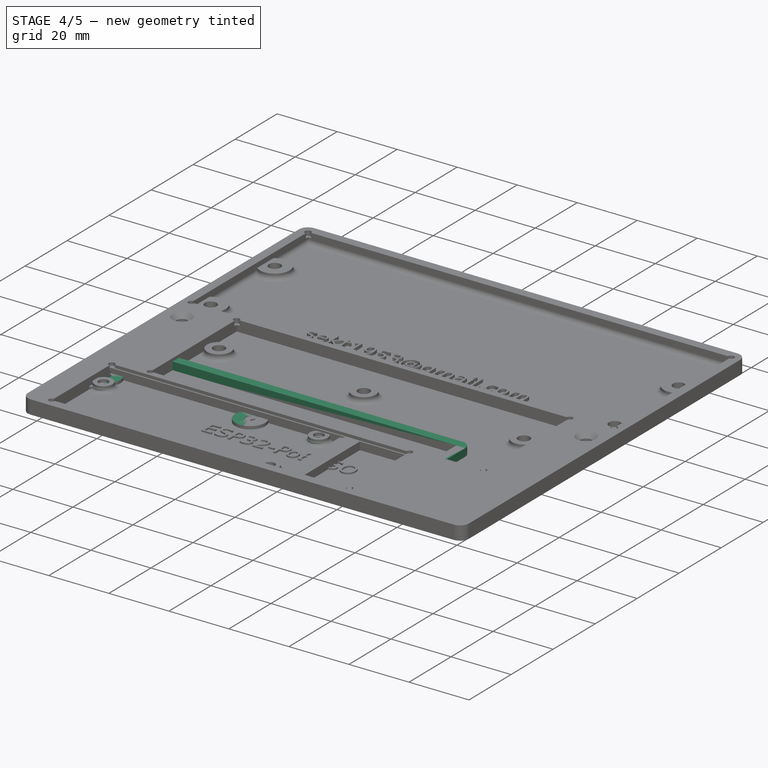
[diagram: stage 4 of 5 — iso view after this stage's code; geometry added in this stage tinted green]
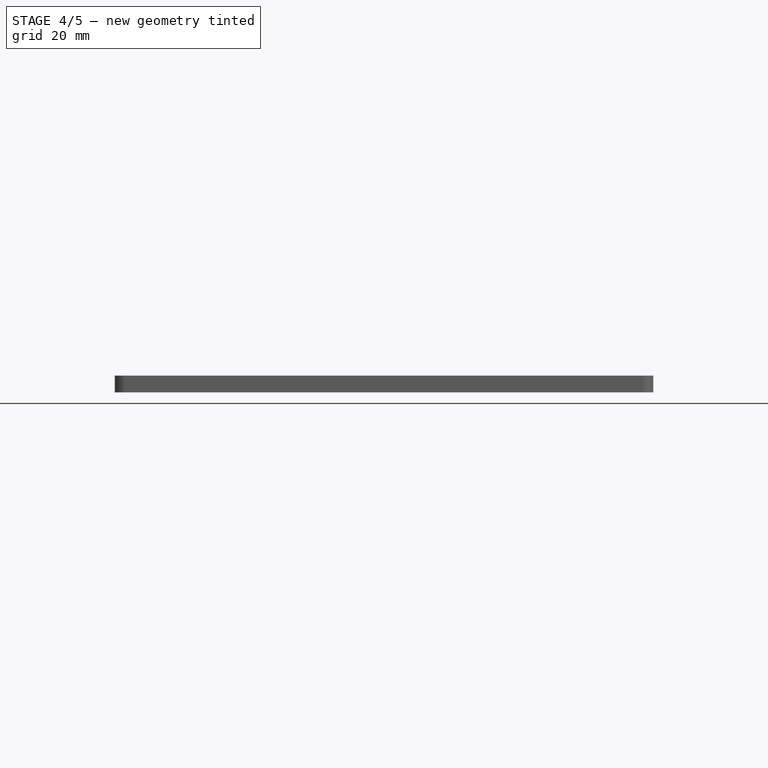
[diagram: stage 4 of 5 — front view after this stage's code; geometry added in this stage tinted green]
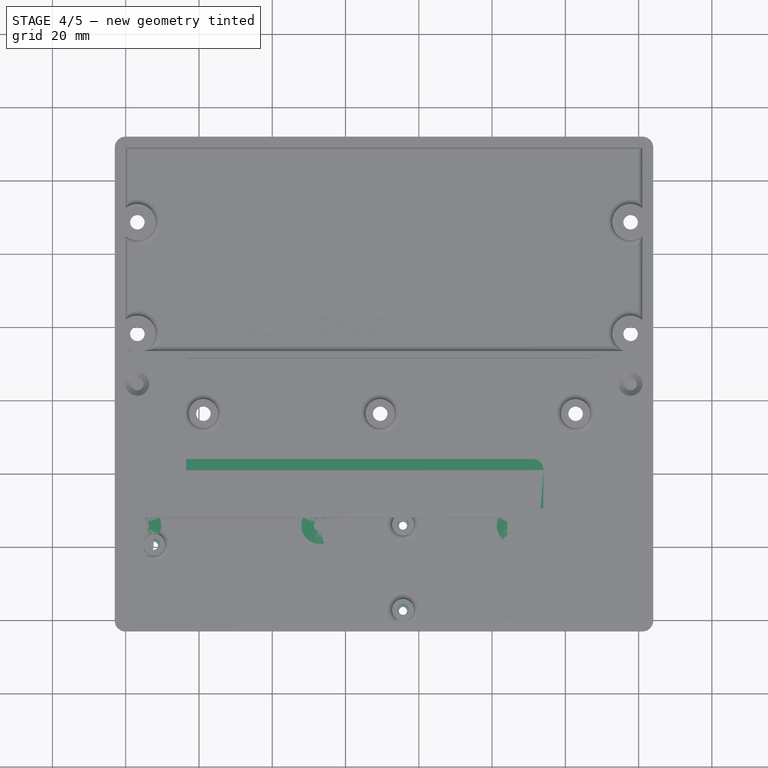
[diagram: stage 4 of 5 — top view after this stage's code; geometry added in this stage tinted green]
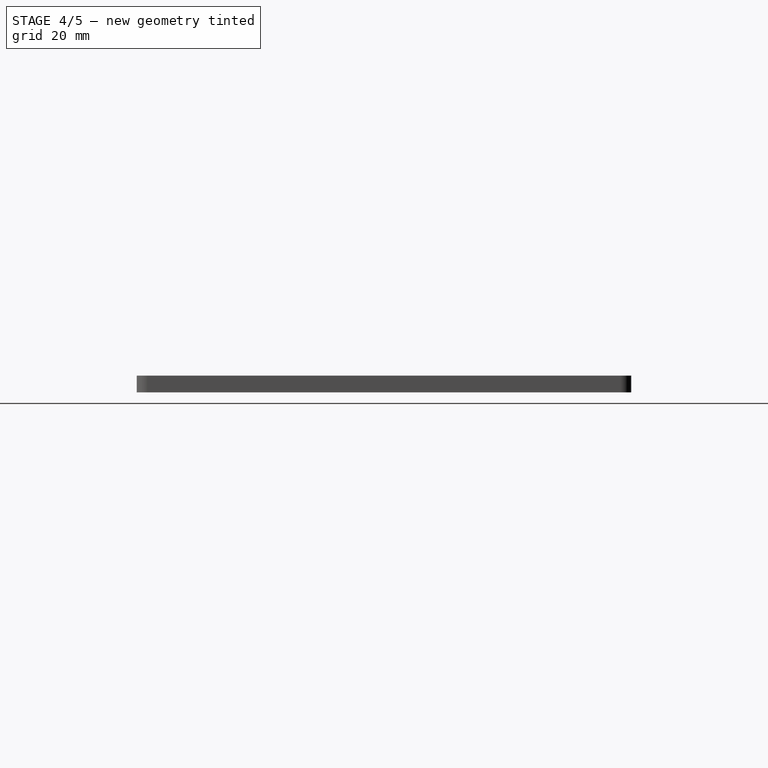
[diagram: stage 4 of 5 — right view after this stage's code; geometry added in this stage tinted green]
FEATURE [PartDesign::Body] Body  label="SporskifteDriver_002"
  AllowCompound = true
  Group = -> [Sketch,Sketch001,Pad,Sketch002,Pad001,Sketch003,Pocket]
  Origin = -> Origin
  Tip = -> Pocket
FEATURE [Sketcher::SketchObject] Sketch004
  ArcFitTolerance = 1e-06
  AttachmentSupport = -> [XY_Plane001]
  FullyConstrained = true
  MakeInternals = false
  MapMode = 5
  expr: Constraints[25] = 2.86 + 2.54
  sketch-geometry (11):
    g0: Circle CenterX=4.7 CenterY=25.9 CenterZ=0 NormalX=0 NormalY=0 NormalZ=1 AngleXU=0 Radius=1.6
    g1: Circle CenterX=52.96 CenterY=25.9 CenterZ=0 NormalX=0 NormalY=0 NormalZ=1 AngleXU=0 Radius=1.6
    g2: Circle CenterX=106.3 CenterY=25.9 CenterZ=0 NormalX=0 NormalY=0 NormalZ=1 AngleXU=0 Radius=1.6
    g3: LineSegment [constr] StartX=4.7 StartY=25.9 StartZ=0 EndX=52.96 EndY=25.9 EndZ=0
    g4: LineSegment [constr] StartX=52.96 StartY=25.9 StartZ=0 EndX=106.3 EndY=25.9 EndZ=0
    g5: LineSegment StartX=0 StartY=0 StartZ=0 EndX=111 EndY=0 EndZ=0
    g6: LineSegment StartX=111 StartY=0 StartZ=0 EndX=111 EndY=41 EndZ=0
    g7: LineSegment StartX=111 StartY=41 StartZ=0 EndX=0 EndY=41 EndZ=0
    g8: LineSegment StartX=0 StartY=41 StartZ=0 EndX=0 EndY=0 EndZ=0
    g9: GeomPoint [constr] X=55.5 Y=20.5 Z=0
    g10: GeomPoint X=55.5 Y=25.9 Z=0
  constraints (27):
    c: Equal(g2,g1)
    c: Equal(g1,g0)
    c: Horizontal(g0,g1)
    c: Horizontal(g1,g2)
    c: Coincident(g3,g0)
    c: Coincident(g3,g1)
    c: Coincident(g3,g4)
    c: Coincident(g4,g2)
    c: DistanceX(g3,g3) = 48.26
    c: DistanceX(g0,g2) = 101.6
    c: Coincident(g5,g6)
    c: Coincident(g6,g7)
    c: Coincident(g7,g8)
    c: Coincident(g8,g5)
    c: Horizontal(g5)
    c: Horizontal(g7)
    c: Vertical(g6)
    c: Vertical(g8)
    c: Symmetric(g7,g5,g9)
    c: DistanceX(g7,g7) = 111
    c: DistanceY(g6,g6) = 41
    c: Coincident(g5,g-1)
    c: Symmetric(g0,g2,g10)
    c: Vertical(g10,g9)
    c: DistanceY(g5,g0) = 25.9
    c: Distance(g10,g9) = 5.4
    c: Diameter(g0) = 3.2
FEATURE [Sketcher::SketchObject] Sketch005
  ArcFitTolerance = 1e-06
  AttachmentSupport = -> [XY_Plane001]
  ExternalGeometry = -> [Sketch004]
  FullyConstrained = true
  MakeInternals = false
  MapMode = 5
  sketch-geometry (15):
    g0: LineSegment StartX=0 StartY=0 StartZ=0 EndX=111 EndY=0 EndZ=0
    g1: LineSegment StartX=111 StartY=0 StartZ=0 EndX=111 EndY=41 EndZ=0
    g2: LineSegment StartX=111 StartY=41 StartZ=0 EndX=0 EndY=41 EndZ=0
    g3: LineSegment StartX=0 StartY=41 StartZ=0 EndX=0 EndY=0 EndZ=0
    g4: GeomPoint [constr] X=55.5 Y=20.5 Z=0
    g5: LineSegment StartX=1.9e-15 StartY=-3 StartZ=0 EndX=111 EndY=-3 EndZ=0
    g6: LineSegment StartX=114 StartY=-2.3e-15 StartZ=0 EndX=114 EndY=41 EndZ=0
    g7: LineSegment StartX=111 StartY=44 StartZ=0 EndX=0 EndY=44 EndZ=0
    g8: LineSegment StartX=-3 StartY=41 StartZ=0 EndX=-3 EndY=0 EndZ=0
    g9: ArcOfCircle CenterX=0 CenterY=0 CenterZ=0 NormalX=0 NormalY=0 NormalZ=1 AngleXU=0 Radius=3 StartAngle=3.14159 EndAngle=4.71239
    g10: ArcOfCircle CenterX=111 CenterY=-2.3e-15 CenterZ=0 NormalX=0 NormalY=0 NormalZ=1 AngleXU=0 Radius=3 StartAngle=4.71239 EndAngle=6.28319
    g11: ArcOfCircle CenterX=111 CenterY=41 CenterZ=0 NormalX=0 NormalY=0 NormalZ=1 AngleXU=0 Radius=3 StartAngle=1.1e-15 EndAngle=1.5708
    g12: ArcOfCircle CenterX=2e-16 CenterY=41 CenterZ=0 NormalX=0 NormalY=0 NormalZ=1 AngleXU=0 Radius=3 StartAngle=1.5708 EndAngle=3.14159
    g13: GeomPoint [constr] X=114 Y=44 Z=0
    g14: GeomPoint [constr] X=55.5 Y=20.5 Z=0
  constraints (32):
    c: Coincident(g0,g1)
    c: Coincident(g1,g2)
    c: Coincident(g2,g3)
    c: Coincident(g3,g0)
    c: Horizontal(g0)
    c: Horizontal(g2)
    c: Vertical(g1)
    c: Vertical(g3)
    c: Symmetric(g2,g0,g4)
    c: Coincident(g1,g-3)
    c: Coincident(g0,g-1)
    c: Tangent(g5,g9) = -1.5708
    c: Tangent(g5,g10) = -1.5708
    c: Tangent(g6,g10) = -1.5708
    c: Tangent(g6,g11) = -1.5708
    c: Tangent(g7,g11) = -1.5708
    c: Tangent(g7,g12) = -1.5708
    c: Tangent(g8,g12) = -1.5708
    c: Tangent(g8,g9) = -1.5708
    c: Horizontal(g5)
    c: Horizontal(g7)
    c: Vertical(g6)
    c: Vertical(g8)
    c: Equal(g9,g10)
    c: Equal(g10,g11)
    c: Equal(g11,g12)
    c: Symmetric(g7,g5,g14)
    c: PointOnObject(g13,g6)
    c: PointOnObject(g13,g7)
    c: Radius(g10) = 3
    c: Coincident(g14,g4)
    c: Coincident(g9,g0)
FEATURE [PartDesign::Pad] Pad002
  Direction = (0,0,1)
  Length = 3.6
  Length2 = 10
  Profile = -> Sketch005
  ReferenceAxis = -> Sketch005 [N_Axis]
  Refine = true
  Suppressed = false
  Type = 0
  expr: Length = 1.6 + 2
FEATURE [Sketcher::SketchObject] Sketch006
  ArcFitTolerance = 1e-06
  AttachmentSupport = -> [XY_Plane001]
  ExternalGeometry = -> [Sketch004]
  FullyConstrained = true
  MakeInternals = false
  MapMode = 5
  sketch-geometry (6):
    g0: Circle CenterX=4.7 CenterY=25.9 CenterZ=0 NormalX=0 NormalY=0 NormalZ=1 AngleXU=0 Radius=1.6
    g1: Circle CenterX=52.96 CenterY=25.9 CenterZ=0 NormalX=0 NormalY=0 NormalZ=1 AngleXU=0 Radius=1.6
    g2: Circle CenterX=106.3 CenterY=25.9 CenterZ=0 NormalX=0 NormalY=0 NormalZ=1 AngleXU=0 Radius=1.6
    g3: Circle CenterX=4.7 CenterY=25.9 CenterZ=0 NormalX=0 NormalY=0 NormalZ=1 AngleXU=0 Radius=5
    g4: Circle CenterX=106.3 CenterY=25.9 CenterZ=0 NormalX=0 NormalY=0 NormalZ=1 AngleXU=0 Radius=5
    g5: Circle CenterX=52.96 CenterY=25.9 CenterZ=0 NormalX=0 NormalY=0 NormalZ=1 AngleXU=0 Radius=5
  constraints (12):
    c: Coincident(g0,g-3)
    c: Coincident(g1,g-4)
    c: Coincident(g2,g-5)
    c: Equal(g2,g1)
    c: Equal(g1,g0)
    c: Diameter(g0) = 3.2
    c: Coincident(g3,g0)
    c: Coincident(g4,g2)
    c: Diameter(g3) = 10
    c: Equal(g4,g3)
    c: Coincident(g5,g1)
    c: Equal(g5,g4)
FEATURE [PartDesign::Pad] Pad003
  BaseFeature = -> Pad002
  Direction = (0,0,1)
  Length = 2
  Length2 = 10
  Profile = -> Sketch006
  ReferenceAxis = -> Sketch006 [N_Axis]
  Refine = true
  Suppressed = false
  Type = 0
  expr: Length = 2
FEATURE [Sketcher::SketchObject] Sketch011
  ArcFitTolerance = 1e-06
  AttachmentSupport = -> [XY_Plane002]
  ExternalGeometry = -> [Sketch009]
  FullyConstrained = true
  MakeInternals = false
  MapMode = 5
  sketch-geometry (6):
    g0: Circle CenterX=75.675 CenterY=25.83 CenterZ=0 NormalX=0 NormalY=0 NormalZ=1 AngleXU=0 Radius=3
    g1: Circle CenterX=75.675 CenterY=2.5746 CenterZ=0 NormalX=0 NormalY=0 NormalZ=1 AngleXU=0 Radius=3
    g2: Circle CenterX=7.73 CenterY=20.36 CenterZ=0 NormalX=0 NormalY=0 NormalZ=1 AngleXU=0 Radius=1.1
    g3: Circle CenterX=75.675 CenterY=25.83 CenterZ=0 NormalX=0 NormalY=0 NormalZ=1 AngleXU=0 Radius=1.1
    g4: Circle CenterX=75.675 CenterY=2.5746 CenterZ=0 NormalX=0 NormalY=0 NormalZ=1 AngleXU=0 Radius=1.1
    g5: Circle CenterX=7.73 CenterY=20.36 CenterZ=0 NormalX=0 NormalY=0 NormalZ=1 AngleXU=0 Radius=3
  constraints (12):
    c: Coincident(g0,g-3)
    c: Coincident(g1,g-4)
    c: Equal(g0,g1)
    c: Diameter(g0) = 6
    c: Equal(g4,g3)
    c: Equal(g3,g2)
    c: Coincident(g5,g-5)
    c: Equal(g5,g0)
    c: Coincident(g2,g5)
    c: Coincident(g3,g0)
    c: Coincident(g4,g1)
    c: Diameter(g3) = 2.2
FEATURE [PartDesign::Pad] Pad006
  BaseFeature = -> Pad005
  Direction = (0,0,1)
  Length = 2
  Length2 = 10
  Profile = -> Sketch011
  ReferenceAxis = -> Sketch011 [N_Axis]
  Refine = true
  Suppressed = false
  Type = 0
FEATURE [Sketcher::SketchObject] Sketch015
  ArcFitTolerance = 1e-06
  AttachmentOffset = pos=(0,0,2) rot=(0,0,1;0rad)
  AttachmentSupport = -> [XY_Plane002]
  ExternalGeometry = -> [Sketch009]
  FullyConstrained = true
  MakeInternals = false
  MapMode = 5
  Placement = pos=(0,0,2) rot=(0,0,1;0rad)
  sketch-geometry (4):
    g0: Circle CenterX=5 CenterY=28 CenterZ=0 NormalX=0 NormalY=0 NormalZ=1 AngleXU=0 Radius=1
    g1: Circle CenterX=104.15 CenterY=28 CenterZ=0 NormalX=0 NormalY=0 NormalZ=1 AngleXU=0 Radius=1
    g2: Circle CenterX=104.15 CenterY=0 CenterZ=0 NormalX=0 NormalY=0 NormalZ=1 AngleXU=0 Radius=1
    g3: Circle CenterX=5 CenterY=0 CenterZ=0 NormalX=0 NormalY=0 NormalZ=1 AngleXU=0 Radius=1
  constraints (8):
    c: Equal(g3,g2)
    c: Equal(g2,g1)
    c: Equal(g1,g0)
    c: Coincident(g0,g-3)
    c: Coincident(g1,g-3)
    c: Coincident(g2,g-4)
    c: Coincident(g3,g-4)
    c: Diameter(g1) = 2
FEATURE [PartDesign::Pocket] Pocket002
  BaseFeature = -> Pad006
  Direction = (0,0,-1)
  Length = 5
  Length2 = 5
  Profile = -> Sketch015
  ReferenceAxis = -> Sketch015 [N_Axis]
  Refine = true
  Reversed = true
  Suppressed = false
  Type = 0
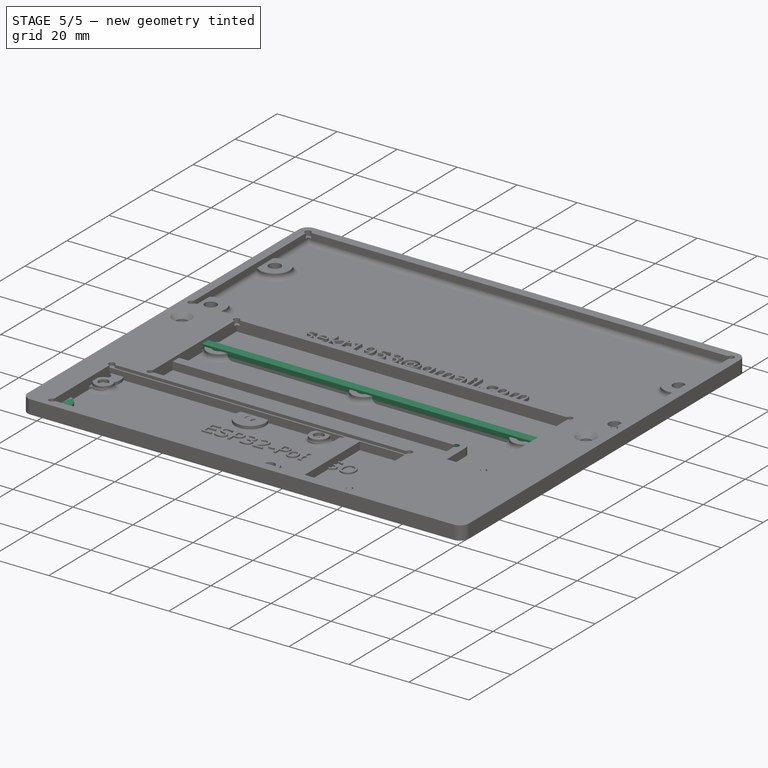
[diagram: stage 5 of 5 — iso view after this stage's code; geometry added in this stage tinted green]
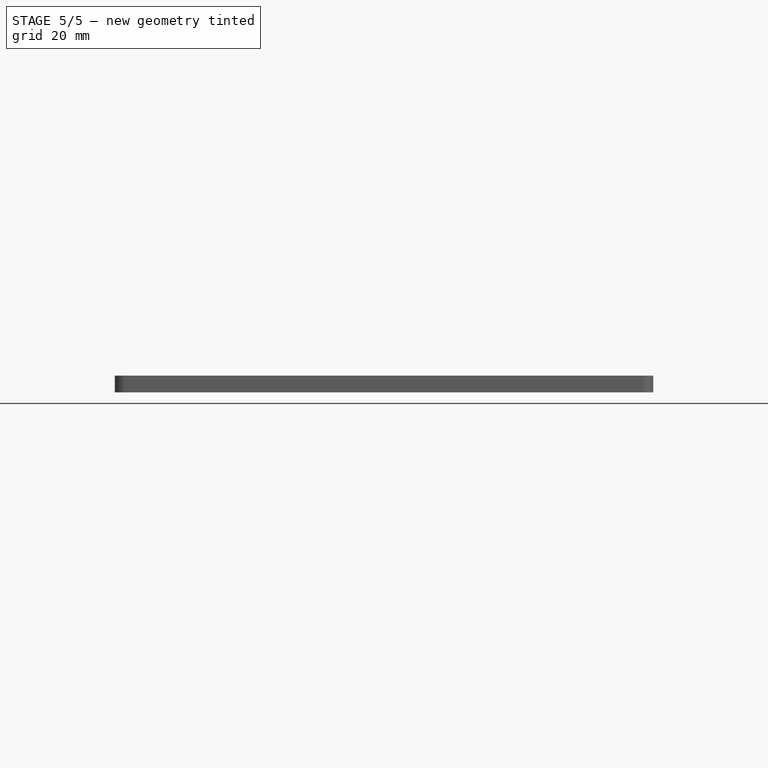
[diagram: stage 5 of 5 — front view after this stage's code; geometry added in this stage tinted green]
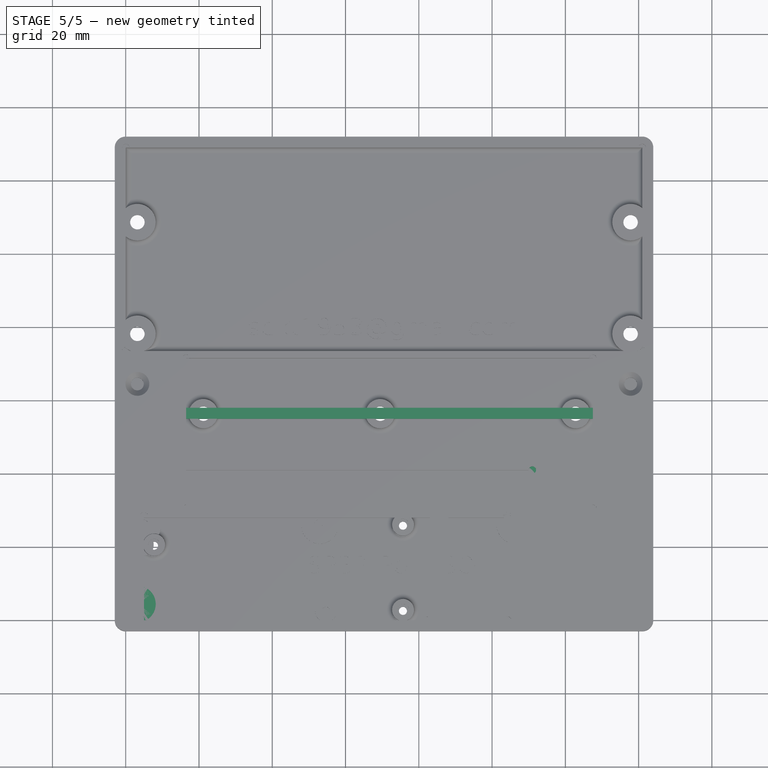
[diagram: stage 5 of 5 — top view after this stage's code; geometry added in this stage tinted green]
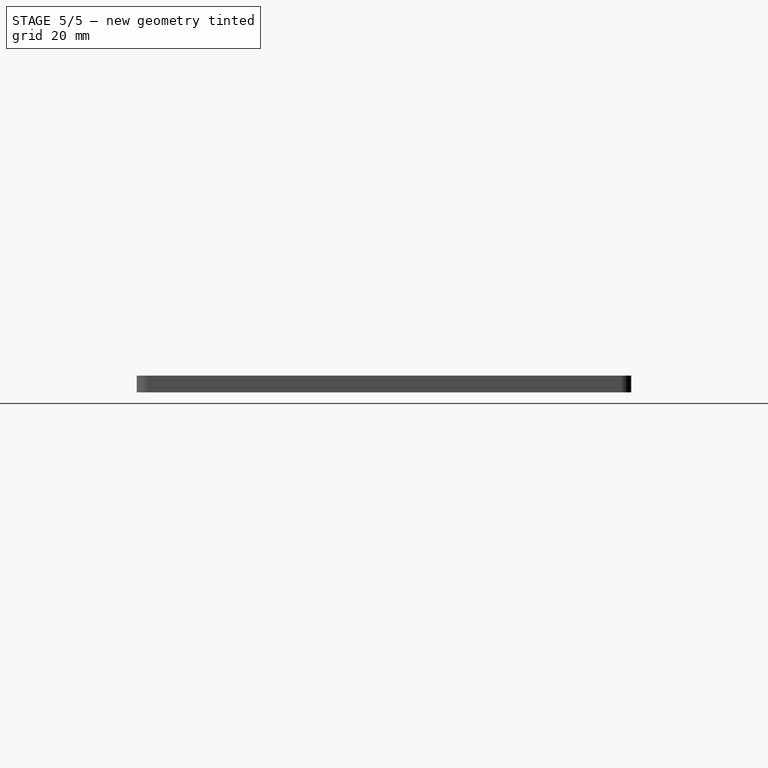
[diagram: stage 5 of 5 — right view after this stage's code; geometry added in this stage tinted green]
FEATURE [Sketcher::SketchObject] Sketch
  ArcFitTolerance = 1e-06
  AttachmentSupport = -> [XY_Plane]
  FullyConstrained = true
  MakeInternals = false
  MapMode = 5
  sketch-geometry (19):
    g0: LineSegment [constr] StartX=3.19 StartY=4.44 StartZ=0 EndX=137.81 EndY=4.44 EndZ=0
    g1: LineSegment [constr] StartX=137.81 StartY=4.44 StartZ=0 EndX=137.81 EndY=34.92 EndZ=0
    g2: LineSegment [constr] StartX=137.81 StartY=34.92 StartZ=0 EndX=3.19 EndY=34.92 EndZ=0
    g3: LineSegment [constr] StartX=3.19 StartY=34.92 StartZ=0 EndX=3.19 EndY=4.44 EndZ=0
    g4: GeomPoint [constr] X=70.5 Y=19.68 Z=0
    g5: Circle CenterX=3.19 CenterY=34.92 CenterZ=0 NormalX=0 NormalY=0 NormalZ=1 AngleXU=0 Radius=1.6
    g6: Circle CenterX=137.81 CenterY=34.92 CenterZ=0 NormalX=0 NormalY=0 NormalZ=1 AngleXU=0 Radius=1.6
    g7: Circle CenterX=137.81 CenterY=4.44 CenterZ=0 NormalX=0 NormalY=0 NormalZ=1 AngleXU=0 Radius=1.6
    g8: Circle CenterX=3.19 CenterY=4.44 CenterZ=0 NormalX=0 NormalY=0 NormalZ=1 AngleXU=0 Radius=1.6
    g9: LineSegment [constr] StartX=0 StartY=0 StartZ=0 EndX=3.19 EndY=0 EndZ=0
    g10: LineSegment [constr] StartX=3.19 StartY=0 StartZ=0 EndX=3.19 EndY=4.44 EndZ=0
    g11: LineSegment [constr] StartX=3.19 StartY=4.44 StartZ=0 EndX=0 EndY=4.44 EndZ=0
    g12: LineSegment [constr] StartX=0 StartY=4.44 StartZ=0 EndX=0 EndY=0 EndZ=0
    g13: LineSegment StartX=0 StartY=0 StartZ=0 EndX=141 EndY=0 EndZ=0
    g14: LineSegment StartX=141 StartY=0 StartZ=0 EndX=141 EndY=55 EndZ=0
    g15: LineSegment StartX=141 StartY=55 StartZ=0 EndX=0 EndY=55 EndZ=0
    g16: LineSegment StartX=0 StartY=55 StartZ=0 EndX=0 EndY=0 EndZ=0
    g17: GeomPoint [constr] X=70.5 Y=27.5 Z=0
    g18: GeomPoint [constr] X=70.5 Y=27.5 Z=0
  constraints (45):
    c: Coincident(g0,g1)
    c: Coincident(g1,g2)
    c: Coincident(g2,g3)
    c: Coincident(g3,g0)
    c: Horizontal(g0)
    c: Horizontal(g2)
    c: Vertical(g1)
    c: Vertical(g3)
    c: Symmetric(g2,g0,g4)
    c: Coincident(g5,g2)
    c: Coincident(g6,g1)
    c: Coincident(g7,g0)
    c: Coincident(g8,g0)
    c: DistanceX(g2,g2) = 134.62
    c: DistanceY(g3,g3) = 30.48
    c: Coincident(g9,g10)
    c: Coincident(g10,g11)
    c: Coincident(g11,g12)
    c: Coincident(g12,g9)
    c: Horizontal(g9)
    c: Horizontal(g11)
    c: Vertical(g10)
    c: Vertical(g12)
    c: Coincident(g9,g-1)
    c: Coincident(g10,g0)
    c: DistanceY(g10,g10) = 4.44
    c: Coincident(g13,g14)
    c: Coincident(g14,g15)
    c: Coincident(g15,g16)
    c: Coincident(g16,g13)
    c: Horizontal(g13)
    c: Horizontal(g15)
    c: Vertical(g14)
    c: Vertical(g16)
    c: Symmetric(g15,g13,g17)
    c: Coincident(g13,g9)
    c: DistanceX(g15,g15) = 141
    c: Vertical(g4,g17)
    c: Equal(g8,g5)
    c: Equal(g5,g6)
    c: Equal(g6,g7)
    c: Diameter(g5) = 3.2
    c: DistanceY(g14,g14) = 55
    c: Coincident(g18,g17)
    c: DistanceY(g4,g17) = 7.82
FEATURE [Sketcher::SketchObject] Sketch001
  ArcFitTolerance = 1e-06
  AttachmentSupport = -> [XY_Plane]
  ExternalGeometry = -> [Sketch]
  FullyConstrained = true
  MakeInternals = false
  MapMode = 5
  sketch-geometry (15):
    g0: LineSegment StartX=0 StartY=0 StartZ=0 EndX=141 EndY=0 EndZ=0
    g1: LineSegment StartX=141 StartY=0 StartZ=0 EndX=141 EndY=55 EndZ=0
    g2: LineSegment StartX=141 StartY=55 StartZ=0 EndX=0 EndY=55 EndZ=0
    g3: LineSegment StartX=0 StartY=55 StartZ=0 EndX=0 EndY=0 EndZ=0
    g4: GeomPoint [constr] X=70.5 Y=27.5 Z=0
    g5: LineSegment StartX=-6e-16 StartY=-3 StartZ=0 EndX=141 EndY=-3 EndZ=0
    g6: LineSegment StartX=144 StartY=-2.7804e-12 StartZ=0 EndX=144 EndY=55 EndZ=0
    g7: LineSegment StartX=141 StartY=58 StartZ=0 EndX=0 EndY=58 EndZ=0
    g8: LineSegment StartX=-3 StartY=55 StartZ=0 EndX=-3 EndY=0 EndZ=0
    g9: ArcOfCircle CenterX=0 CenterY=0 CenterZ=0 NormalX=0 NormalY=0 NormalZ=1 AngleXU=0 Radius=3 StartAngle=3.14159 EndAngle=4.71239
    g10: ArcOfCircle CenterX=141 CenterY=-2.7797e-12 CenterZ=0 NormalX=0 NormalY=0 NormalZ=1 AngleXU=0 Radius=3 StartAngle=4.71239 EndAngle=6.28319
    g11: ArcOfCircle CenterX=141 CenterY=55 CenterZ=0 NormalX=0 NormalY=0 NormalZ=1 AngleXU=0 Radius=3 StartAngle=-9e-16 EndAngle=1.5708
    g12: ArcOfCircle CenterX=-3e-16 CenterY=55 CenterZ=0 NormalX=0 NormalY=0 NormalZ=1 AngleXU=0 Radius=3 StartAngle=1.5708 EndAngle=3.14159
    g13: GeomPoint [constr] X=144 Y=58 Z=0
    g14: GeomPoint [constr] X=70.5 Y=27.5 Z=0
  constraints (32):
    c: Coincident(g0,g1)
    c: Coincident(g1,g2)
    c: Coincident(g2,g3)
    c: Coincident(g3,g0)
    c: Horizontal(g0)
    c: Horizontal(g2)
    c: Vertical(g1)
    c: Vertical(g3)
    c: Symmetric(g2,g0,g4)
    c: Coincident(g1,g-3)
    c: Coincident(g0,g-1)
    c: Tangent(g5,g9) = -1.5708
    c: Tangent(g5,g10) = -1.5708
    c: Tangent(g6,g10) = -1.5708
    c: Tangent(g6,g11) = -1.5708
    c: Tangent(g7,g11) = -1.5708
    c: Tangent(g7,g12) = -1.5708
    c: Tangent(g8,g12) = -1.5708
    c: Tangent(g8,g9) = -1.5708
    c: Horizontal(g5)
    c: Horizontal(g7)
    c: Vertical(g6)
    c: Vertical(g8)
    c: Equal(g9,g10)
    c: Equal(g10,g11)
    c: Equal(g11,g12)
    c: Symmetric(g7,g5,g14)
    c: PointOnObject(g13,g6)
    c: PointOnObject(g13,g7)
    c: Radius(g10) = 3
    c: Coincident(g14,g4)
    c: Coincident(g9,g0)
FEATURE [PartDesign::Pad] Pad
  Direction = (0,0,1)
  Length = 3.6
  Length2 = 10
  Profile = -> Sketch001
  ReferenceAxis = -> Sketch001 [N_Axis]
  Refine = true
  Suppressed = false
  Type = 0
  expr: Length = 1.6 + 2
FEATURE [Sketcher::SketchObject] Sketch002
  ArcFitTolerance = 1e-06
  AttachmentSupport = -> [XY_Plane]
  ExternalGeometry = -> [Sketch]
  FullyConstrained = true
  MakeInternals = false
  MapMode = 5
  sketch-geometry (8):
    g0: Circle CenterX=3.19 CenterY=34.92 CenterZ=0 NormalX=0 NormalY=0 NormalZ=1 AngleXU=0 Radius=1.6
    g1: Circle CenterX=3.19 CenterY=4.44 CenterZ=0 NormalX=0 NormalY=0 NormalZ=1 AngleXU=0 Radius=1.6
    g2: Circle CenterX=137.81 CenterY=4.44 CenterZ=0 NormalX=0 NormalY=0 NormalZ=1 AngleXU=0 Radius=1.6
    g3: Circle CenterX=137.81 CenterY=34.92 CenterZ=0 NormalX=0 NormalY=0 NormalZ=1 AngleXU=0 Radius=1.6
    g4: Circle CenterX=3.19 CenterY=34.92 CenterZ=0 NormalX=0 NormalY=0 NormalZ=1 AngleXU=0 Radius=5
    g5: Circle CenterX=3.19 CenterY=4.44 CenterZ=0 NormalX=0 NormalY=0 NormalZ=1 AngleXU=0 Radius=5
    g6: Circle CenterX=137.81 CenterY=4.44 CenterZ=0 NormalX=0 NormalY=0 NormalZ=1 AngleXU=0 Radius=5
    g7: Circle CenterX=137.81 CenterY=34.92 CenterZ=0 NormalX=0 NormalY=0 NormalZ=1 AngleXU=0 Radius=5
  constraints (16):
    c: Coincident(g0,g-3)
    c: Coincident(g1,g-4)
    c: Coincident(g2,g-6)
    c: Coincident(g3,g-5)
    c: Equal(g2,g3)
    c: Equal(g3,g0)
    c: Equal(g0,g1)
    c: Diameter(g0) = 3.2
    c: Coincident(g4,g0)
    c: Coincident(g5,g1)
    c: Coincident(g6,g2)
    c: Coincident(g7,g3)
    c: Equal(g6,g7)
    c: Equal(g7,g4)
    c: Equal(g4,g5)
    c: Diameter(g4) = 10
FEATURE [PartDesign::Pad] Pad001
  BaseFeature = -> Pad
  Direction = (0,0,1)
  Length = 2
  Length2 = 10
  Profile = -> Sketch002
  ReferenceAxis = -> Sketch002 [N_Axis]
  Refine = true
  Suppressed = false
  Type = 0
  expr: Length = 2
FEATURE [Sketcher::SketchObject] Sketch003
  ArcFitTolerance = 1e-06
  AttachmentOffset = pos=(0,0,2) rot=(0,0,1;0rad)
  AttachmentSupport = -> [XY_Plane]
  ExternalGeometry = -> [Sketch]
  FullyConstrained = true
  MakeInternals = false
  MapMode = 5
  Placement = pos=(0,0,2) rot=(0,0,1;0rad)
  sketch-geometry (4):
    g0: Circle CenterX=0 CenterY=55 CenterZ=0 NormalX=0 NormalY=0 NormalZ=1 AngleXU=0 Radius=1
    g1: Circle CenterX=141 CenterY=55 CenterZ=0 NormalX=0 NormalY=0 NormalZ=1 AngleXU=0 Radius=1
    g2: Circle CenterX=0 CenterY=0 CenterZ=0 NormalX=0 NormalY=0 NormalZ=1 AngleXU=0 Radius=1
    g3: Circle CenterX=141 CenterY=0 CenterZ=0 NormalX=0 NormalY=0 NormalZ=1 AngleXU=0 Radius=1
  constraints (8):
    c: Equal(g1,g3)
    c: Equal(g3,g2)
    c: Equal(g2,g0)
    c: Coincident(g0,g-3)
    c: Coincident(g1,g-3)
    c: Coincident(g3,g-4)
    c: Coincident(g2,g-1)
    c: Diameter(g0) = 2
FEATURE [PartDesign::Pocket] Pocket
  BaseFeature = -> Pad001
  Direction = (0,0,-1)
  Length = 5
  Length2 = 5
  Profile = -> Sketch003
  ReferenceAxis = -> Sketch003 [N_Axis]
  Refine = true
  Reversed = true
  Suppressed = false
  Type = 1
FEATURE [Sketcher::SketchObject] Sketch007
  ArcFitTolerance = 1e-06
  AttachmentOffset = pos=(0,0,2) rot=(0,0,1;0rad)
  AttachmentSupport = -> [XY_Plane001]
  ExternalGeometry = -> [Sketch004]
  FullyConstrained = true
  MakeInternals = false
  MapMode = 5
  Placement = pos=(0,0,2) rot=(0,0,1;0rad)
  sketch-geometry (4):
    g0: Circle CenterX=0 CenterY=41 CenterZ=0 NormalX=0 NormalY=0 NormalZ=1 AngleXU=0 Radius=1
    g1: Circle CenterX=111 CenterY=41 CenterZ=0 NormalX=0 NormalY=0 NormalZ=1 AngleXU=0 Radius=1
    g2: Circle CenterX=111 CenterY=0 CenterZ=0 NormalX=0 NormalY=0 NormalZ=1 AngleXU=0 Radius=1
    g3: Circle CenterX=0 CenterY=0 CenterZ=0 NormalX=0 NormalY=0 NormalZ=1 AngleXU=0 Radius=1
  constraints (8):
    c: Equal(g3,g2)
    c: Equal(g2,g1)
    c: Equal(g1,g0)
    c: Coincident(g0,g-3)
    c: Coincident(g1,g-3)
    c: Coincident(g2,g-4)
    c: Coincident(g3,g-1)
    c: Diameter(g1) = 2
FEATURE [PartDesign::Pocket] Pocket001
  BaseFeature = -> Pad003
  Direction = (0,0,-1)
  Length = 5
  Length2 = 5
  Profile = -> Sketch007
  ReferenceAxis = -> Sketch007 [N_Axis]
  Refine = true
  Reversed = true
  Suppressed = false
  Type = 0
FEATURE [Sketcher::SketchObject] Sketch008
  ArcFitTolerance = 1e-06
  AttachmentSupport = -> [XY_Plane001]
  ExternalGeometry = -> [Sketch004]
  FullyConstrained = true
  MakeInternals = false
  MapMode = 5
  sketch-geometry (6):
    g0: LineSegment StartX=50.46 StartY=41 StartZ=0 EndX=50.46 EndY=0 EndZ=0
    g1: LineSegment StartX=50.46 StartY=0 StartZ=0 EndX=55.46 EndY=0 EndZ=0
    g2: LineSegment StartX=55.46 StartY=0 StartZ=0 EndX=55.46 EndY=41 EndZ=0
    g3: LineSegment StartX=55.46 StartY=41 StartZ=0 EndX=50.46 EndY=41 EndZ=0
    g4: GeomPoint X=52.96 Y=20.5 Z=0
    g5: Circle CenterX=52.96 CenterY=25.9 CenterZ=0 NormalX=0 NormalY=0 NormalZ=1 AngleXU=0 Radius=1.6
  constraints (15):
    c: Coincident(g0,g1)
    c: Coincident(g1,g2)
    c: Coincident(g2,g3)
    c: Coincident(g3,g0)
    c: Vertical(g0)
    c: Vertical(g2)
    c: Horizontal(g1)
    c: Horizontal(g3)
    c: DistanceX(g3,g3) = 5
    c: PointOnObject(g2,g-3)
    c: PointOnObject(g0,g-4)
    c: Symmetric(g0,g2,g4)
    c: Vertical(g4,g-5)
    c: Coincident(g5,g-5)
    c: Equal(g5,g-5)
FEATURE [PartDesign::Pad] Pad004
  BaseFeature = -> Pocket001
  Direction = (0,0,1)
  Length = 1
  Length2 = 10
  Profile = -> Sketch008
  ReferenceAxis = -> Sketch008 [N_Axis]
  Refine = true
  Suppressed = false
  Type = 0
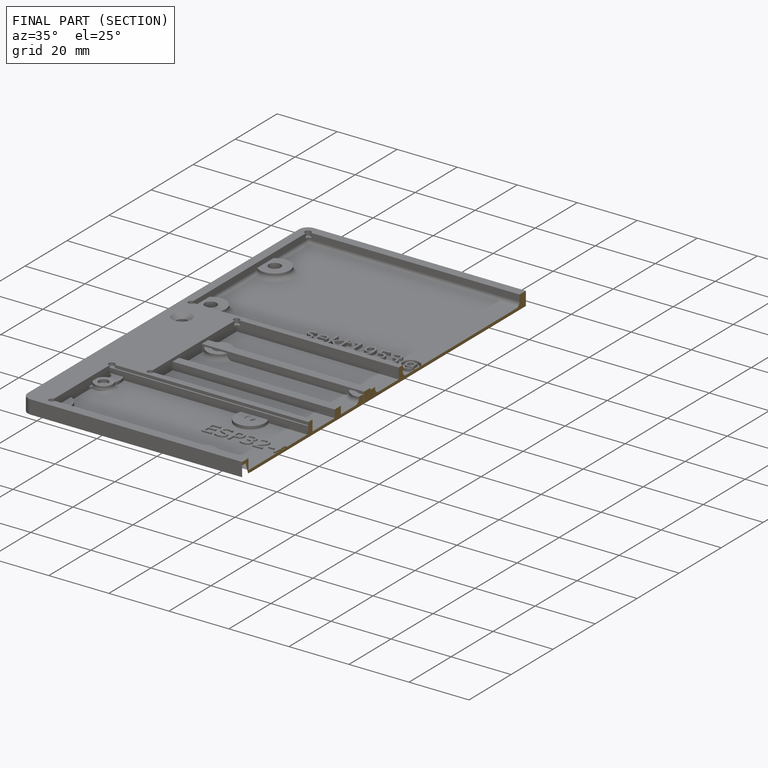
[diagram: finished part — half-section view (interior)]
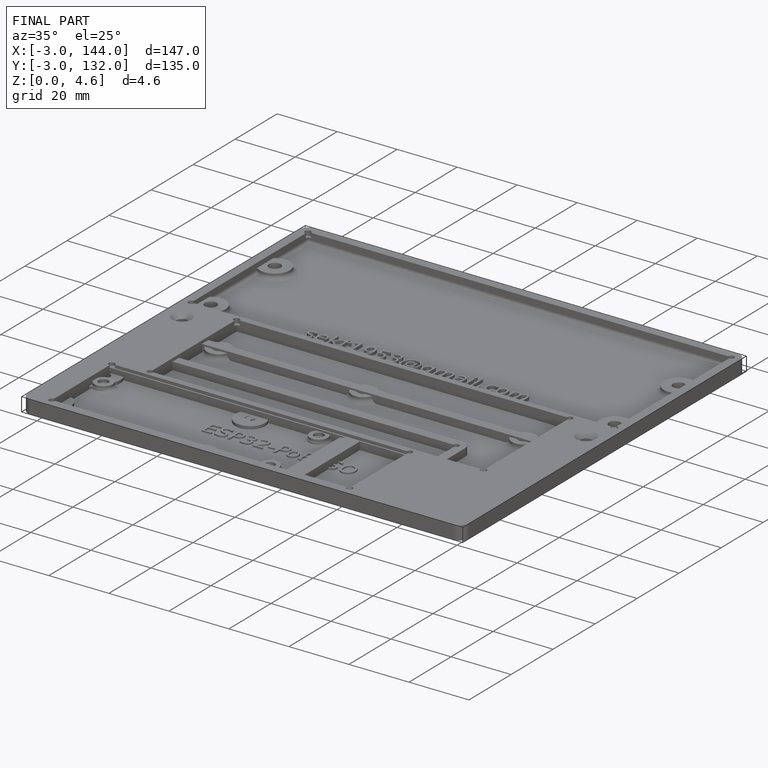
[diagram: finished part — iso view with bounding-box wireframe]
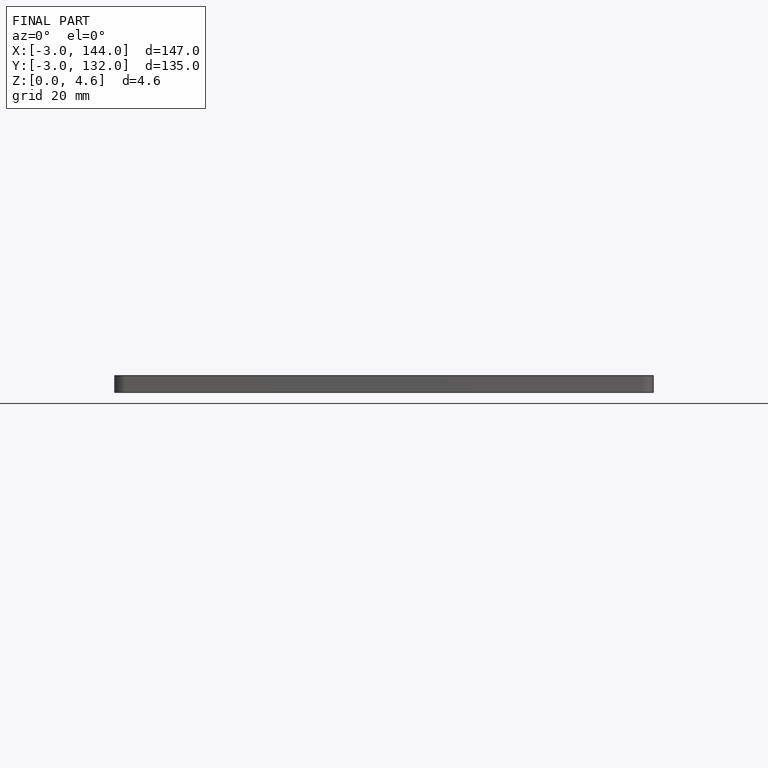
[diagram: finished part — front view with bounding-box wireframe]
